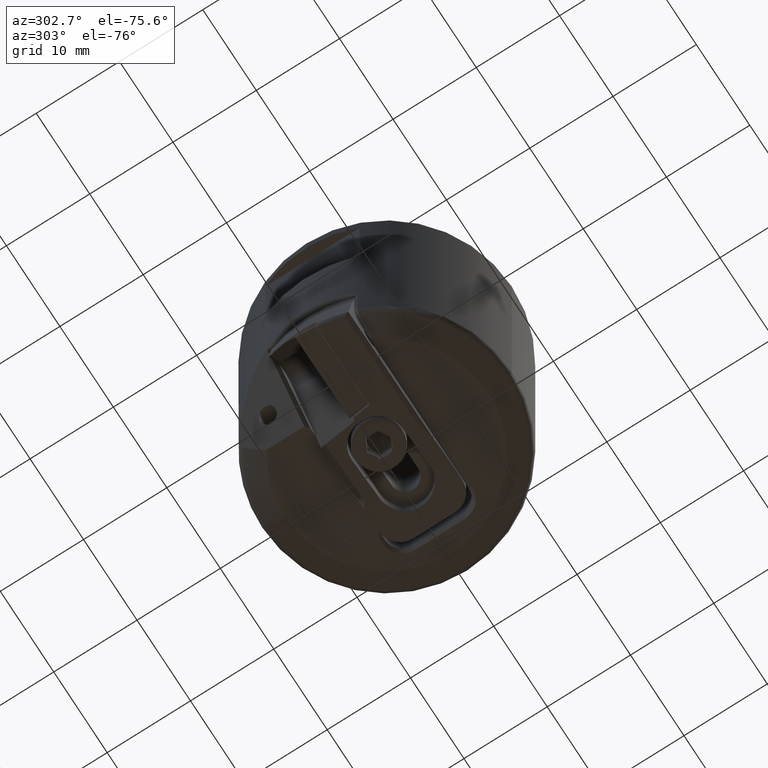
[diagram: clean part render]
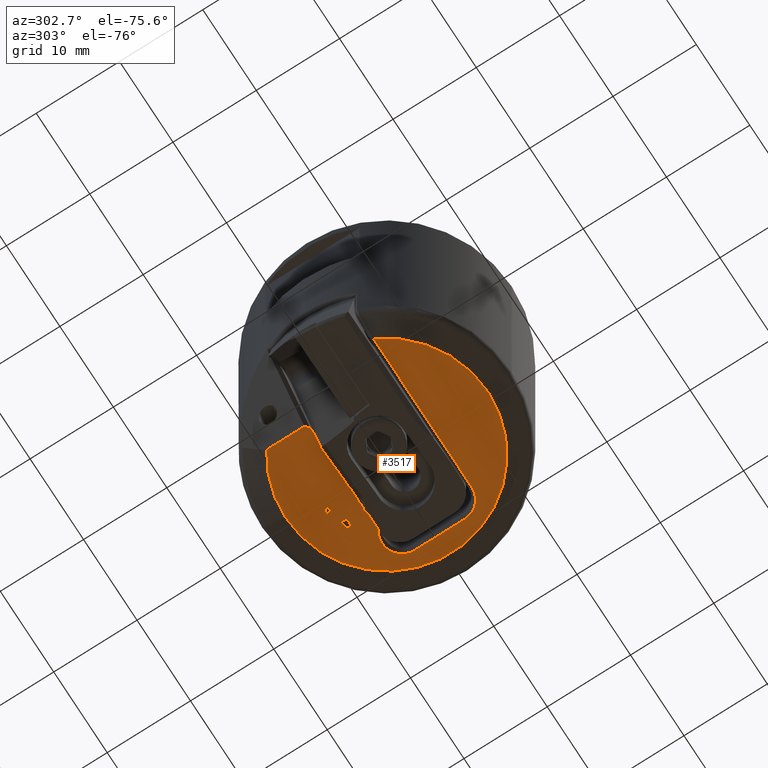
[diagram: same view with one face highlighted and labeled with its STEP entity id]
A machine part, auxiliary view. The second image highlights one B-rep face of the part: STEP entity #3517.
In plain terms, the highlighted planar face has unit normal (-0, 0, 1).
Its self-contained STEP definition (entity closure, byte-faithful):
#2015=VERTEX_POINT('NONE',#5953);
#2035=EDGE_CURVE('NONE',#2407,#5653,#5975,.F.);
#2037=VERTEX_POINT('NONE',#5977);
#2045=VERTEX_POINT('NONE',#5986);
#2049=EDGE_CURVE('NONE',#4603,#4691,#5990,.F.);
#2057=VERTEX_POINT('NONE',#5999);
#2079=EDGE_CURVE('NONE',#5471,#3443,#6022,.T.);
#2081=EDGE_CURVE('NONE',#4551,#3193,#6024,.F.);
#2113=VERTEX_POINT('NONE',#6060);
#2121=VERTEX_POINT('NONE',#6070);
#2135=EDGE_CURVE('NONE',#4603,#2413,#6085,.F.);
#2145=EDGE_CURVE('NONE',#5653,#5349,#6096,.F.);
#2167=EDGE_CURVE('NONE',#5339,#3561,#6120,.F.);
#2171=VERTEX_POINT('NONE',#6125);
#2175=VERTEX_POINT('NONE',#6129);
#2193=EDGE_CURVE('NONE',#4443,#3611,#6148,.F.);
#2207=EDGE_CURVE('NONE',#5619,#2811,#6164,.F.);
#2213=EDGE_CURVE('NONE',#3029,#2171,#6171,.F.);
#2227=EDGE_CURVE('NONE',#2175,#5871,#6186,.F.);
#2229=VERTEX_POINT('NONE',#6188);
#2245=EDGE_CURVE('NONE',#4521,#4721,#6204,.F.);
#2249=VERTEX_POINT('NONE',#6208);
#2267=EDGE_CURVE('NONE',#3561,#5513,#6227,.F.);
#2291=EDGE_CURVE('NONE',#2547,#4563,#6255,.T.);
#2303=EDGE_CURVE('NONE',#3169,#2675,#6267,.F.);
#2311=VERTEX_POINT('NONE',#6276);
#2317=EDGE_CURVE('NONE',#5027,#5467,#6283,.T.);
#2333=EDGE_CURVE('NONE',#2881,#4691,#6300,.T.);
#2365=VERTEX_POINT('NONE',#6334);
#2371=EDGE_CURVE('NONE',#2887,#4499,#6340,.F.);
#2373=EDGE_CURVE('NONE',#5489,#5767,#6342,.T.);
#2379=VERTEX_POINT('NONE',#6348);
#2399=VERTEX_POINT('NONE',#6371);
#2407=VERTEX_POINT('NONE',#6380);
#2413=VERTEX_POINT('NONE',#6386);
#2415=VERTEX_POINT('NONE',#6388);
#2447=VERTEX_POINT('NONE',#6428);
#2461=VERTEX_POINT('NONE',#6444);
#2471=VERTEX_POINT('NONE',#6454);
#2489=VERTEX_POINT('NONE',#6476);
#2535=VERTEX_POINT('NONE',#6526);
#2547=VERTEX_POINT('NONE',#6538);
#2549=EDGE_CURVE('NONE',#2489,#4529,#6540,.F.);
#2559=EDGE_CURVE('NONE',#4837,#5259,#6550,.F.);
#2563=VERTEX_POINT('NONE',#6556);
#2595=VERTEX_POINT('NONE',#6591);
#2601=EDGE_CURVE('NONE',#2675,#5471,#6597,.F.);
#2653=VERTEX_POINT('NONE',#6657);
#2661=EDGE_CURVE('NONE',#5715,#2471,#6666,.F.);
#2675=VERTEX_POINT('NONE',#6681);
#2695=EDGE_CURVE('NONE',#4419,#4797,#6702,.F.);
#2709=EDGE_CURVE('NONE',#5335,#2785,#6718,.T.);
#2765=EDGE_CURVE('NONE',#3511,#5889,#6781,.F.);
#2775=EDGE_CURVE('NONE',#4451,#2797,#6793,.T.);
#2785=VERTEX_POINT('NONE',#6805);
#2791=EDGE_CURVE('NONE',#4867,#2547,#6811,.F.);
#2793=VERTEX_POINT('NONE',#6813);
#2797=VERTEX_POINT('NONE',#6818);
#2811=VERTEX_POINT('NONE',#6833);
#2833=EDGE_CURVE('NONE',#4617,#2447,#6859,.T.);
#2849=EDGE_CURVE('NONE',#3109,#2311,#6879,.F.);
#2853=EDGE_CURVE('NONE',#4991,#5619,#6883,.F.);
#2861=EDGE_CURVE('NONE',#2045,#5363,#6891,.F.);
#2875=EDGE_CURVE('NONE',#3383,#4957,#6907,.F.);
#2881=VERTEX_POINT('NONE',#6913);
#2883=EDGE_CURVE('NONE',#2985,#2461,#6915,.F.);
#2887=VERTEX_POINT('NONE',#6919);
#2911=EDGE_CURVE('NONE',#2653,#5825,#6945,.F.);
#2969=EDGE_CURVE('NONE',#5519,#4503,#7008,.F.);
#2985=VERTEX_POINT('NONE',#7024);
#2995=EDGE_CURVE('NONE',#5515,#2399,#7035,.F.);
#3029=VERTEX_POINT('NONE',#7073);
#3031=EDGE_CURVE('NONE',#2379,#4419,#7075,.F.);
#3037=EDGE_CURVE('NONE',#4475,#5245,#7081,.T.);
#3091=EDGE_CURVE('NONE',#5349,#2535,#7146,.F.);
#3095=EDGE_CURVE('NONE',#2399,#4991,#7151,.F.);
#3109=VERTEX_POINT('NONE',#7168);
#3137=EDGE_CURVE('NONE',#3597,#4233,#7201,.F.);
#3151=EDGE_CURVE('NONE',#3425,#5489,#7215,.T.);
#3169=VERTEX_POINT('NONE',#7235);
#3173=EDGE_CURVE('NONE',#4421,#2365,#7239,.F.);
#3193=VERTEX_POINT('NONE',#7261);
#3201=EDGE_CURVE('NONE',#5871,#3333,#7269,.F.);
#3267=EDGE_CURVE('NONE',#4769,#4113,#7343,.F.);
#3333=VERTEX_POINT('NONE',#7413);
#3335=EDGE_CURVE('NONE',#2535,#5585,#7415,.F.);
#3353=EDGE_CURVE('NONE',#3751,#5715,#7436,.F.);
#3363=EDGE_CURVE('NONE',#4645,#5339,#7447,.F.);
#3367=EDGE_CURVE('NONE',#4499,#3109,#7452,.F.);
#3377=VERTEX_POINT('NONE',#7462);
#3383=VERTEX_POINT('NONE',#7469);
#3425=VERTEX_POINT('NONE',#7515);
#3443=VERTEX_POINT('NONE',#7533);
#3511=VERTEX_POINT('NONE',#7612);
#3517=ADVANCED_FACE('NONE',(#7618,#7619,#7620,#7621,#7622,#7623,#7624),#7625,.F.);
#3521=EDGE_CURVE('NONE',#4233,#5163,#7629,.F.);
#3531=EDGE_CURVE('NONE',#5215,#4769,#7640,.F.);
#3543=VERTEX_POINT('NONE',#7654);
#3561=VERTEX_POINT('NONE',#7672);
#3597=VERTEX_POINT('NONE',#7711);
#3609=EDGE_CURVE('NONE',#2311,#2595,#7727,.F.);
#3611=VERTEX_POINT('NONE',#7729);
#3637=EDGE_CURVE('NONE',#5883,#2037,#7755,.F.);
#3659=EDGE_CURVE('NONE',#3333,#3597,#7779,.F.);
#3711=EDGE_CURVE('NONE',#2037,#5515,#7842,.F.);
#3715=VERTEX_POINT('NONE',#7846);
#3725=EDGE_CURVE('NONE',#4529,#4271,#7856,.F.);
#3737=EDGE_CURVE('NONE',#2447,#3897,#7868,.T.);
#3751=VERTEX_POINT('NONE',#7885);
#3755=EDGE_CURVE('NONE',#4987,#2653,#7889,.F.);
#3777=EDGE_CURVE('NONE',#4797,#5215,#7913,.F.);
#3787=EDGE_CURVE('NONE',#2797,#4867,#7923,.T.);
#3805=VERTEX_POINT('NONE',#7942);
#3811=EDGE_CURVE('NONE',#5525,#2249,#7949,.F.);
#3835=EDGE_CURVE('NONE',#2471,#2229,#7975,.F.);
#3897=VERTEX_POINT('NONE',#8047);
#3901=EDGE_CURVE('NONE',#2249,#4403,#8051,.F.);
#3943=EDGE_CURVE('NONE',#4271,#2985,#8096,.F.);
#3957=EDGE_CURVE('NONE',#2365,#2887,#8110,.F.);
#4065=VERTEX_POINT('NONE',#8230);
#4081=EDGE_CURVE('NONE',#2171,#2793,#8251,.F.);
#4103=EDGE_CURVE('NONE',#3611,#2379,#8274,.F.);
#4113=VERTEX_POINT('NONE',#8285);
#4189=VERTEX_POINT('NONE',#8370);
#4197=VERTEX_POINT('NONE',#8378);
#4233=VERTEX_POINT('NONE',#8419);
#4267=EDGE_CURVE('NONE',#5419,#4197,#8456,.T.);
#4269=EDGE_CURVE('NONE',#3897,#4757,#8458,.F.);
#4271=VERTEX_POINT('NONE',#8460);
#4279=EDGE_CURVE('NONE',#2563,#4065,#8469,.T.);
#4281=EDGE_CURVE('NONE',#2229,#5519,#8471,.F.);
#4327=EDGE_CURVE('NONE',#2461,#4933,#8521,.F.);
#4403=VERTEX_POINT('NONE',#8604);
#4419=VERTEX_POINT('NONE',#8621);
#4421=VERTEX_POINT('NONE',#8623);
#4443=VERTEX_POINT('NONE',#8650);
#4451=VERTEX_POINT('NONE',#8658);
#4475=VERTEX_POINT('NONE',#8683);
#4499=VERTEX_POINT('NONE',#8712);
#4503=VERTEX_POINT('NONE',#8716);
#4517=EDGE_CURVE('NONE',#2415,#4189,#8733,.F.);
#4519=EDGE_CURVE('NONE',#2413,#4645,#8735,.F.);
#4521=VERTEX_POINT('NONE',#8737);
#4529=VERTEX_POINT('NONE',#8746);
#4541=EDGE_CURVE('NONE',#5851,#4551,#8760,.T.);
#4551=VERTEX_POINT('NONE',#8771);
#4563=VERTEX_POINT('NONE',#8783);
#4565=EDGE_CURVE('NONE',#4563,#2489,#8785,.F.);
#4579=EDGE_CURVE('NONE',#5585,#2415,#8800,.F.);
#4591=EDGE_CURVE('NONE',#2113,#2045,#8812,.T.);
#4603=VERTEX_POINT('NONE',#8825);
#4617=VERTEX_POINT('NONE',#8840);
#4629=EDGE_CURVE('NONE',#3543,#4837,#8852,.F.);
#4645=VERTEX_POINT('NONE',#8870);
#4667=VERTEX_POINT('NONE',#8892);
#4691=VERTEX_POINT('NONE',#8916);
#4699=EDGE_CURVE('NONE',#4113,#3169,#8926,.F.);
#4713=EDGE_CURVE('NONE',#2015,#3029,#8941,.F.);
#4721=VERTEX_POINT('NONE',#8949);
#4733=EDGE_CURVE('NONE',#5163,#5335,#8963,.F.);
#4757=VERTEX_POINT('NONE',#8990);
#4767=EDGE_CURVE('NONE',#3377,#4451,#9001,.T.);
#4769=VERTEX_POINT('NONE',#9003);
#4773=EDGE_CURVE('NONE',#2057,#5835,#9007,.F.);
#4793=EDGE_CURVE('NONE',#5767,#2057,#9028,.T.);
#4797=VERTEX_POINT('NONE',#9033);
#4823=VERTEX_POINT('NONE',#9060);
#4837=VERTEX_POINT('NONE',#9076);
#4859=EDGE_CURVE('NONE',#4065,#5027,#9100,.T.);
#4867=VERTEX_POINT('NONE',#9109);
#4877=EDGE_CURVE('NONE',#5259,#2121,#9119,.F.);
#4933=VERTEX_POINT('NONE',#9182);
#4935=EDGE_CURVE('NONE',#4933,#5419,#9184,.T.);
#4957=VERTEX_POINT('NONE',#9207);
#4973=EDGE_CURVE('NONE',#5245,#4987,#9224,.T.);
#4987=VERTEX_POINT('NONE',#9238);
#4991=VERTEX_POINT('NONE',#9242);
#4999=EDGE_CURVE('NONE',#5467,#2595,#9250,.T.);
#5027=VERTEX_POINT('NONE',#9283);
#5121=EDGE_CURVE('NONE',#4721,#3543,#9386,.F.);
#5127=EDGE_CURVE('NONE',#4503,#3511,#9393,.F.);
#5163=VERTEX_POINT('NONE',#9431);
#5191=EDGE_CURVE('NONE',#4823,#2407,#9461,.F.);
#5215=VERTEX_POINT('NONE',#9485);
#5223=EDGE_CURVE('NONE',#5307,#3751,#9493,.F.);
#5233=EDGE_CURVE('NONE',#3715,#5883,#9503,.T.);
#5239=EDGE_CURVE('NONE',#4197,#5851,#9509,.T.);
#5245=VERTEX_POINT('NONE',#9515);
#5247=EDGE_CURVE('NONE',#2811,#2113,#9517,.F.);
#5251=EDGE_CURVE('NONE',#5363,#3715,#9521,.T.);
#5259=VERTEX_POINT('NONE',#9530);
#5305=EDGE_CURVE('NONE',#4957,#5307,#9580,.F.);
#5307=VERTEX_POINT('NONE',#9582);
#5335=VERTEX_POINT('NONE',#9615);
#5339=VERTEX_POINT('NONE',#9619);
#5349=VERTEX_POINT('NONE',#9630);
#5357=EDGE_CURVE('NONE',#5889,#3383,#9638,.F.);
#5361=EDGE_CURVE('NONE',#2785,#4617,#9642,.T.);
#5363=VERTEX_POINT('NONE',#9644);
#5395=EDGE_CURVE('NONE',#3443,#4443,#9681,.T.);
#5419=VERTEX_POINT('NONE',#9706);
#5459=EDGE_CURVE('NONE',#4189,#4667,#9750,.F.);
#5467=VERTEX_POINT('',#9758);
#5469=EDGE_CURVE('NONE',#5525,#2563,#9760,.T.);
#5471=VERTEX_POINT('NONE',#9762);
#5489=VERTEX_POINT('NONE',#9783);
#5513=VERTEX_POINT('NONE',#9808);
#5515=VERTEX_POINT('NONE',#9810);
#5519=VERTEX_POINT('NONE',#9814);
#5525=VERTEX_POINT('NONE',#9820);
#5535=EDGE_CURVE('NONE',#5835,#2175,#9830,.T.);
#5565=EDGE_CURVE('NONE',#2793,#4421,#9865,.F.);
#5579=EDGE_CURVE('NONE',#5825,#3805,#9881,.F.);
#5583=EDGE_CURVE('NONE',#4667,#2015,#9885,.F.);
#5585=VERTEX_POINT('NONE',#9887);
#5619=VERTEX_POINT('NONE',#9926);
#5651=EDGE_CURVE('NONE',#5513,#4823,#9962,.F.);
#5653=VERTEX_POINT('NONE',#9964);
#5667=EDGE_CURVE('NONE',#2121,#4475,#9978,.F.);
#5675=EDGE_CURVE('NONE',#4757,#3425,#9988,.F.);
#5715=VERTEX_POINT('NONE',#10031);
#5767=VERTEX_POINT('NONE',#10093);
#5799=EDGE_CURVE('NONE',#3193,#3377,#10131,.F.);
#5801=EDGE_CURVE('NONE',#3805,#4521,#10133,.F.);
#5825=VERTEX_POINT('NONE',#10163);
#5835=VERTEX_POINT('NONE',#10173);
#5851=VERTEX_POINT('NONE',#10189);
#5871=VERTEX_POINT('NONE',#10214);
#5883=VERTEX_POINT('NONE',#10228);
#5889=VERTEX_POINT('NONE',#10235);
#5905=EDGE_CURVE('NONE',#4403,#2881,#10254,.T.);
#5953=CARTESIAN_POINT('',(3.655,6.6,-37.0));
#5975=LINE('',#10332,#10333);
#5977=CARTESIAN_POINT('',(3.22036931818182,7.48273133116884,-37.0));
#5986=CARTESIAN_POINT('',(3.26389610389611,6.98441558441559,-37.0));
#5990=LINE('',#10452,#10453);
#5999=CARTESIAN_POINT('',(3.28077922077922,8.33506493506494,-37.0));
#6022=B_SPLINE_CURVE_WITH_KNOTS('',3,(#10545,#10546,#10547,#10548,#10549,#10550,#10551,#10552,#10553,#10554,#10555,#10556,#10557,#10558,#10559,#10560,#10561,#10562,#10563),.UNSPECIFIED.,.F.,.F.,(4,1,1,1,1,1,1,1,1,1,1,1,1,1,1,1,4),(0.0,0.0727804158572602,0.142147766141081,0.209182770519268,0.274291770152588,0.337768801127301,0.400757223676069,0.462801267937535,0.525595131187398,0.587540489138166,0.647529023597575,0.706322611761746,0.763699532618562,0.821374241162988,0.879618955186682,0.9389099248299,1.0),.UNSPECIFIED.);
#6024=LINE('',#10566,#10567);
#6060=CARTESIAN_POINT('',(2.94311688311688,7.28329951298702,-37.0));
#6070=CARTESIAN_POINT('',(5.77751217532468,7.39330357142857,-37.0));
#6085=LINE('',#10675,#10676);
#6096=LINE('',#10701,#10702);
#6120=LINE('',#10752,#10753);
#6125=CARTESIAN_POINT('',(4.505,5.0,-37.0));
#6129=CARTESIAN_POINT('',(2.94311688311688,8.15198863636364,-37.0));
#6148=LINE('',#10789,#10790);
#6164=B_SPLINE_CURVE_WITH_KNOTS('',3,(#10813,#10814,#10815,#10816,#10817,#10818,#10819,#10820,#10821,#10822,#10823,#10824,#10825,#10826),.UNSPECIFIED.,.F.,.F.,(4,2,2,2,2,2,4),(-1.4744356503941,-1.36825569916316,-1.14163530923819,-0.861182361087245,-0.573354291610239,-0.308116330768604,-0.0),.UNSPECIFIED.);
#6171=LINE('',#10836,#10837);
#6186=B_SPLINE_CURVE_WITH_KNOTS('',3,(#10858,#10859,#10860,#10861,#10862,#10863,#10864,#10865,#10866,#10867,#10868,#10869),.UNSPECIFIED.,.F.,.F.,(4,2,2,2,2,4),(-1.61673109427794,-1.46601648817538,-1.17266288993949,-0.710039343898753,-0.323197745206386,-0.0),.UNSPECIFIED.);
#6188=CARTESIAN_POINT('',(1.78727272727273,8.53766233766235,-37.0));
#6204=B_SPLINE_CURVE_WITH_KNOTS('',3,(#10896,#10897,#10898,#10899,#10900,#10901),.UNSPECIFIED.,.F.,.F.,(4,2,4),(-0.509836528326806,-0.251879658745903,-0.0),.UNSPECIFIED.);
#6208=CARTESIAN_POINT('',(-1.63184190498527E-015,-12.15,-37.0));
#6227=LINE('',#10953,#10954);
#6255=B_SPLINE_CURVE_WITH_KNOTS('',3,(#11185,#11186,#11187,#11188,#11189,#11190,#11191,#11192,#11193,#11194,#11195,#11196,#11197,#11198,#11199,#11200,#11201,#11202,#11203),.UNSPECIFIED.,.F.,.F.,(4,1,1,1,1,1,1,1,1,1,1,1,1,1,1,1,4),(0.0,0.0787344013313963,0.153587303458513,0.224356039299088,0.292110216091395,0.357093412305996,0.419768093960272,0.480649357608464,0.540279918566923,0.598947770460141,0.656031681584112,0.71233438282353,0.768115240442121,0.824627320255345,0.881743242202261,0.940019145126421,1.0),.UNSPECIFIED.);
#6267=B_SPLINE_CURVE_WITH_KNOTS('',3,(#11222,#11223,#11224,#11225,#11226,#11227,#11228,#11229),.UNSPECIFIED.,.F.,.F.,(4,2,2,4),(-1.0896330722384,-0.736021289552389,-0.382257627513336,-0.0),.UNSPECIFIED.);
#6276=CARTESIAN_POINT('',(5.655,5.0,-37.0));
#6283=CIRCLE('',#11250,2.40000000000001);
#6300=LINE('',#11282,#11283);
#6334=CARTESIAN_POINT('',(4.655,5.0,-37.0));
#6340=LINE('',#11366,#11367);
#6342=B_SPLINE_CURVE_WITH_KNOTS('',3,(#11370,#11371,#11372,#11373,#11374,#11375,#11376,#11377,#11378,#11379,#11380),.UNSPECIFIED.,.F.,.F.,(4,1,1,1,1,1,1,1,4),(0.0,0.146093407258856,0.280765395695931,0.407852847267321,0.533013434944008,0.654304595216599,0.768538625770671,0.882120443088061,1.0),.UNSPECIFIED.);
#6348=CARTESIAN_POINT('',(0.943116883116885,7.29675324675326,-37.0));
#6371=CARTESIAN_POINT('',(3.41584415584416,7.28409090909092,-37.0));
#6380=CARTESIAN_POINT('',(1.655,6.6,-37.0));
#6386=CARTESIAN_POINT('',(0.505000000000001,5.0,-37.0));
#6388=CARTESIAN_POINT('',(2.655,5.0,-37.0));
#6428=CARTESIAN_POINT('',(3.61844155844156,8.1406452922078,-37.0));
#6444=CARTESIAN_POINT('',(5.90545454545455,8.48701298701299,-37.0));
#6454=CARTESIAN_POINT('',(1.93922077922078,8.53766233766235,-37.0));
#6476=CARTESIAN_POINT('',(5.28157061688312,7.84545454545455,-37.0));
#6526=CARTESIAN_POINT('',(2.505,6.2,-37.0));
#6538=CARTESIAN_POINT('',(5.26389610389611,8.47012987012987,-37.0));
#6540=B_SPLINE_CURVE_WITH_KNOTS('',3,(#12141,#12142,#12143,#12144,#12145,#12146,#12147,#12148),.UNSPECIFIED.,.F.,.F.,(4,2,2,4),(-0.809220408115279,-0.526155092124205,-0.325929512771211,-0.0),.UNSPECIFIED.);
#6550=LINE('',#12162,#12163);
#6556=CARTESIAN_POINT('',(7.5,-5.40000000000002,-37.0));
#6591=CARTESIAN_POINT('',(6.17335008385782,5.0,-37.0));
#6597=B_SPLINE_CURVE_WITH_KNOTS('',3,(#12358,#12359,#12360,#12361,#12362,#12363,#12364,#12365),.UNSPECIFIED.,.F.,.F.,(4,2,2,4),(-0.482342901286013,-0.426407059842657,-0.321732721581422,-0.0),.UNSPECIFIED.);
#6657=CARTESIAN_POINT('',(5.33142857142857,7.64285714285714,-37.0));
#6666=LINE('',#12678,#12679);
#6681=CARTESIAN_POINT('',(1.77751217532468,7.39330357142858,-37.0));
#6702=B_SPLINE_CURVE_WITH_KNOTS('',3,(#12729,#12730,#12731,#12732,#12733,#12734,#12735,#12736),.UNSPECIFIED.,.F.,.F.,(4,2,2,4),(-0.691454828847826,-0.514782624456551,-0.340984080017329,-0.0),.UNSPECIFIED.);
#6718=B_SPLINE_CURVE_WITH_KNOTS('',3,(#12857,#12858,#12859,#12860,#12861,#12862,#12863,#12864,#12865,#12866,#12867,#12868,#12869,#12870,#12871,#12872,#12873,#12874,#12875),.UNSPECIFIED.,.F.,.F.,(4,1,1,1,1,1,1,1,1,1,1,1,1,1,1,1,4),(0.0,0.0870147113786563,0.169559824573214,0.246922625650576,0.320216995058209,0.388751767922912,0.453782549621108,0.515051687049054,0.573662089122866,0.629075852700787,0.682898553341826,0.734725498972754,0.786273108851305,0.837947397462471,0.890062636797466,0.943824566586637,1.0),.UNSPECIFIED.);
#6781=LINE('',#13025,#13026);
#6793=B_SPLINE_CURVE_WITH_KNOTS('',3,(#13091,#13092,#13093,#13094,#13095,#13096,#13097,#13098,#13099,#13100,#13101),.UNSPECIFIED.,.F.,.F.,(4,1,1,1,1,1,1,1,4),(0.0,0.146093407258854,0.28076539569593,0.407852847267321,0.533013434944009,0.654304595216599,0.768538625770671,0.882120443088061,1.0),.UNSPECIFIED.);
#6805=CARTESIAN_POINT('',(4.14181818181818,8.14803165584416,-37.0));
#6811=LINE('',#13124,#13125);
#6813=CARTESIAN_POINT('',(4.505,6.2,-37.0));
#6818=CARTESIAN_POINT('',(5.07818181818182,8.14829545454545,-37.0));
#6833=CARTESIAN_POINT('',(3.64350243506494,7.65974025974027,-37.0));
#6859=B_SPLINE_CURVE_WITH_KNOTS('',3,(#13326,#13327,#13328,#13329,#13330,#13331,#13332,#13333,#13334,#13335,#13336,#13337,#13338,#13339,#13340,#13341,#13342,#13343,#13344),.UNSPECIFIED.,.F.,.F.,(4,1,1,1,1,1,1,1,1,1,1,1,1,1,1,1,4),(0.0,0.0755317067076459,0.14705781953059,0.215855346948831,0.28250510182615,0.34711971869597,0.410771537831527,0.47318139083984,0.535599522664003,0.596602587057806,0.656248002165695,0.713668832121082,0.76994899302527,0.826151060373875,0.882829192179903,0.940268016754959,1.0),.UNSPECIFIED.);
#6879=LINE('',#13372,#13373);
#6883=B_SPLINE_CURVE_WITH_KNOTS('',3,(#13379,#13380,#13381,#13382,#13383,#13384,#13385,#13386,#13387,#13388,#13389,#13390),.UNSPECIFIED.,.F.,.F.,(4,2,2,2,2,4),(-1.20343601133522,-1.04577171334899,-0.830960771812364,-0.616102141461835,-0.347937706274249,-0.0),.UNSPECIFIED.);
#6891=LINE('',#13403,#13404);
#6907=LINE('',#13462,#13463);
#6913=CARTESIAN_POINT('',(-7.0,9.93088616388286,-37.0));
#6915=B_SPLINE_CURVE_WITH_KNOTS('',3,(#13472,#13473,#13474,#13475,#13476,#13477,#13478,#13479,#13480,#13481,#13482,#13483),.UNSPECIFIED.,.F.,.F.,(4,2,2,2,2,4),(-1.1047549065353,-1.03564771432829,-0.867715930774213,-0.566987660720163,-0.331091412910333,-0.0),.UNSPECIFIED.);
#6919=CARTESIAN_POINT('',(5.505,5.0,-37.0));
#6945=B_SPLINE_CURVE_WITH_KNOTS('',3,(#13570,#13571,#13572,#13573,#13574,#13575,#13576,#13577,#13578,#13579,#13580,#13581),.UNSPECIFIED.,.F.,.F.,(4,2,2,2,2,4),(-1.01044314112794,-0.907522610956922,-0.668733238020847,-0.531797349515407,-0.383114061021551,-0.0),.UNSPECIFIED.);
#7008=LINE('',#13757,#13758);
#7024=CARTESIAN_POINT('',(6.27688311688312,8.15014204545455,-37.0));
#7035=B_SPLINE_CURVE_WITH_KNOTS('',3,(#13795,#13796,#13797,#13798,#13799,#13800,#13801,#13802),.UNSPECIFIED.,.F.,.F.,(4,2,2,4),(-1.09690985465669,-0.606817561261977,-0.364641407943929,-0.0),.UNSPECIFIED.);
#7073=CARTESIAN_POINT('',(3.655,5.0,-37.0));
#7075=B_SPLINE_CURVE_WITH_KNOTS('',3,(#13861,#13862,#13863,#13864,#13865,#13866,#13867,#13868,#13869,#13870,#13871,#13872),.UNSPECIFIED.,.F.,.F.,(4,2,2,2,2,4),(-1.10603617306866,-0.905245334086242,-0.714200915909634,-0.552576090951779,-0.314173848988293,-0.0),.UNSPECIFIED.);
#7081=B_SPLINE_CURVE_WITH_KNOTS('',3,(#13881,#13882,#13883,#13884,#13885,#13886,#13887,#13888,#13889,#13890,#13891,#13892,#13893,#13894,#13895,#13896,#13897,#13898,#13899),.UNSPECIFIED.,.F.,.F.,(4,1,1,1,1,1,1,1,1,1,1,1,1,1,1,1,4),(0.0,0.0727804158572613,0.142147766141081,0.20918277051927,0.274291770152589,0.337768801127301,0.40075722367607,0.462801267937536,0.525595131187399,0.587540489138166,0.647529023597575,0.706322611761746,0.763699532618561,0.821374241162989,0.879618955186682,0.9389099248299,1.0),.UNSPECIFIED.);
#7146=LINE('',#14013,#14014);
#7151=B_SPLINE_CURVE_WITH_KNOTS('',3,(#14020,#14021,#14022,#14023,#14024,#14025,#14026,#14027,#14028,#14029,#14030,#14031),.UNSPECIFIED.,.F.,.F.,(4,2,2,2,2,4),(-0.58929807835445,-0.517037117514478,-0.462443278243041,-0.413374868602281,-0.312069132822516,-0.0),.UNSPECIFIED.);
#7168=CARTESIAN_POINT('',(5.655,6.6,-37.0));
#7201=B_SPLINE_CURVE_WITH_KNOTS('',3,(#14117,#14118,#14119,#14120,#14121,#14122,#14123,#14124,#14125,#14126,#14127,#14128),.UNSPECIFIED.,.F.,.F.,(4,2,2,2,2,4),(-1.0619707570686,-0.96095054566255,-0.802350498644141,-0.567351700239663,-0.312755657130486,-0.0),.UNSPECIFIED.);
#7215=B_SPLINE_CURVE_WITH_KNOTS('',3,(#14148,#14149,#14150,#14151,#14152,#14153,#14154,#14155,#14156,#14157,#14158,#14159,#14160,#14161,#14162,#14163,#14164,#14165,#14166),.UNSPECIFIED.,.F.,.F.,(4,1,1,1,1,1,1,1,1,1,1,1,1,1,1,1,4),(0.0,0.0690292090650794,0.134699324053628,0.198855960846468,0.260636479273357,0.320384851756808,0.380768464004617,0.440335536221027,0.500788766425867,0.561122602379466,0.621431534779787,0.680857213271693,0.740520040393358,0.801802517590906,0.865366362012225,0.930940330791385,1.0),.UNSPECIFIED.);
#7235=CARTESIAN_POINT('',(2.26,7.65974025974027,-37.0));
#7239=LINE('',#14196,#14197);
#7261=CARTESIAN_POINT('',(5.48337662337663,8.21688311688312,-37.0));
#7269=B_SPLINE_CURVE_WITH_KNOTS('',3,(#14256,#14257,#14258,#14259,#14260,#14261,#14262,#14263),.UNSPECIFIED.,.F.,.F.,(4,2,2,4),(-0.809220408114139,-0.526155092123331,-0.325929512770767,-0.0),.UNSPECIFIED.);
#7343=LINE('',#14467,#14468);
#7413=CARTESIAN_POINT('',(3.54668831168831,7.99186282467533,-37.0));
#7415=LINE('',#14608,#14609);
#7436=LINE('',#14638,#14639);
#7447=LINE('',#14653,#14654);
#7452=LINE('',#14660,#14661);
#7462=CARTESIAN_POINT('',(5.48522321428572,8.19657061688312,-37.0));
#7469=CARTESIAN_POINT('',(1.93922077922078,7.79480519480521,-37.0));
#7515=CARTESIAN_POINT('',(3.48522321428572,8.19657061688312,-37.0));
#7533=CARTESIAN_POINT('',(1.07818181818182,7.30176542207793,-37.0));
#7612=CARTESIAN_POINT('',(1.78727272727273,7.94675324675326,-37.0));
#7618=FACE_OUTER_BOUND('',#14975,.T.);
#7619=FACE_BOUND('',#14976,.T.);
#7620=FACE_BOUND('',#14977,.T.);
#7621=FACE_BOUND('',#14978,.T.);
#7622=FACE_BOUND('',#14979,.T.);
#7623=FACE_BOUND('',#14980,.T.);
#7624=FACE_BOUND('',#14981,.T.);
#7625=PLANE('',#14982);
#7629=B_SPLINE_CURVE_WITH_KNOTS('',3,(#14987,#14988,#14989,#14990,#14991,#14992,#14993,#14994,#14995,#14996,#14997,#14998),.UNSPECIFIED.,.F.,.F.,(4,2,2,2,2,4),(-1.10475490654936,-1.03564771433855,-0.867715930777662,-0.566987660721507,-0.331091412910404,-0.0),.UNSPECIFIED.);
#7640=LINE('',#15015,#15016);
#7654=CARTESIAN_POINT('',(6.10805194805195,6.96753246753247,-37.0));
#7672=CARTESIAN_POINT('',(0.655000000000001,5.0,-37.0));
#7711=CARTESIAN_POINT('',(3.86825892857143,7.7948051948052,-37.0));
#7727=LINE('',#15276,#15277);
#7729=CARTESIAN_POINT('',(1.33142857142857,7.64285714285715,-37.0));
#7755=B_SPLINE_CURVE_WITH_KNOTS('',3,(#15346,#15347,#15348,#15349,#15350,#15351,#15352,#15353,#15354,#15355,#15356,#15357),.UNSPECIFIED.,.F.,.F.,(4,2,2,2,2,4),(-0.261166389695055,-0.211534947963125,-0.175631123259114,-0.148228636680453,-0.0912971194689873,-0.0),.UNSPECIFIED.);
#7779=B_SPLINE_CURVE_WITH_KNOTS('',3,(#15389,#15390,#15391,#15392,#15393,#15394,#15395,#15396,#15397,#15398),.UNSPECIFIED.,.F.,.F.,(4,2,2,2,4),(-7.17133314154812,-2.02509841053453,-0.909462132203981,-0.327580496792934,-0.0),.UNSPECIFIED.);
#7842=B_SPLINE_CURVE_WITH_KNOTS('',3,(#15594,#15595,#15596,#15597,#15598,#15599),.UNSPECIFIED.,.F.,.F.,(4,2,4),(-0.528209040262762,-0.341191829209163,-0.0),.UNSPECIFIED.);
#7846=CARTESIAN_POINT('',(3.13964691558442,7.17435064935066,-37.0));
#7856=B_SPLINE_CURVE_WITH_KNOTS('',3,(#15622,#15623,#15624,#15625,#15626,#15627,#15628,#15629,#15630,#15631),.UNSPECIFIED.,.F.,.F.,(4,2,2,2,4),(-7.1713331419207,-2.02509841061377,-0.909462132213788,-0.327580496792755,-0.0),.UNSPECIFIED.);
#7868=B_SPLINE_CURVE_WITH_KNOTS('',3,(#15646,#15647,#15648,#15649,#15650,#15651,#15652),.UNSPECIFIED.,.F.,.F.,(4,1,1,1,4),(0.0,0.208161422839124,0.443742890776892,0.70798628514352,1.0),.UNSPECIFIED.);
#7885=CARTESIAN_POINT('',(2.26,8.08181818181819,-37.0));
#7889=LINE('',#15844,#15845);
#7913=B_SPLINE_CURVE_WITH_KNOTS('',3,(#15957,#15958,#15959,#15960,#15961,#15962),.UNSPECIFIED.,.F.,.F.,(4,2,4),(-0.509836528326658,-0.251879658745901,-0.0),.UNSPECIFIED.);
#7923=B_SPLINE_CURVE_WITH_KNOTS('',3,(#15974,#15975,#15976,#15977,#15978,#15979,#15980,#15981,#15982,#15983,#15984,#15985,#15986,#15987,#15988),.UNSPECIFIED.,.F.,.F.,(4,1,1,1,1,1,1,1,1,1,1,1,4),(0.0,0.115765078426595,0.225203205486027,0.334943061145549,0.448158058099923,0.507119511420224,0.567285864598362,0.630622450620807,0.696557608007488,0.766265703213675,0.840094230323641,0.917481099872998,1.0),.UNSPECIFIED.);
#7942=CARTESIAN_POINT('',(5.30742288961039,6.96753246753247,-37.0));
#7949=CIRCLE('',#16042,12.15);
#7975=LINE('',#16112,#16113);
#8047=CARTESIAN_POINT('',(3.63637987012987,8.23376623376624,-37.0));
#8051=CIRCLE('',#16223,12.15);
#8096=B_SPLINE_CURVE_WITH_KNOTS('',3,(#16315,#16316,#16317,#16318,#16319,#16320,#16321,#16322,#16323,#16324,#16325,#16326),.UNSPECIFIED.,.F.,.F.,(4,2,2,2,2,4),(-1.061970757005,-0.960950545629167,-0.802350498640629,-0.567351700240134,-0.312755657130539,-0.0),.UNSPECIFIED.);
#8110=LINE('',#16349,#16350);
#8230=CARTESIAN_POINT('',(9.90000000000001,-3.0,-37.0));
#8251=LINE('',#16813,#16814);
#8274=B_SPLINE_CURVE_WITH_KNOTS('',3,(#16869,#16870,#16871,#16872,#16873,#16874,#16875,#16876,#16877,#16878,#16879,#16880),.UNSPECIFIED.,.F.,.F.,(4,2,2,2,2,4),(-1.01044314112563,-0.907522610955269,-0.668733238019962,-0.531797349514803,-0.383114061021118,-0.0),.UNSPECIFIED.);
#8285=CARTESIAN_POINT('',(2.26,6.96753246753248,-37.0));
#8370=CARTESIAN_POINT('',(3.505,5.0,-37.0));
#8378=CARTESIAN_POINT('',(5.86984172077922,7.92987012987013,-37.0));
#8419=CARTESIAN_POINT('',(4.27688311688312,8.15014204545455,-37.0));
#8456=B_SPLINE_CURVE_WITH_KNOTS('',3,(#17352,#17353,#17354,#17355,#17356,#17357,#17358,#17359,#17360,#17361,#17362,#17363,#17364,#17365,#17366,#17367,#17368,#17369,#17370),.UNSPECIFIED.,.F.,.F.,(4,1,1,1,1,1,1,1,1,1,1,1,1,1,1,1,4),(0.0,0.0565024102745068,0.111056446457973,0.16550868680804,0.220329037718226,0.275740788587613,0.333285085904462,0.392974818760024,0.455509216742349,0.519440182545513,0.583587741738659,0.648055240867621,0.714350738948263,0.781322756925756,0.851332510679599,0.923795616745915,1.0),.UNSPECIFIED.);
#8458=LINE('',#17373,#17374);
#8460=CARTESIAN_POINT('',(5.86825892857143,7.7948051948052,-37.0));
#8469=CIRCLE('',#17401,2.40000000000001);
#8471=LINE('',#17404,#17405);
#8521=LINE('',#17495,#17496);
#8604=CARTESIAN_POINT('',(0.0,12.15,-37.0));
#8621=CARTESIAN_POINT('',(1.30742288961039,6.96753246753248,-37.0));
#8623=CARTESIAN_POINT('',(4.655,6.2,-37.0));
#8650=CARTESIAN_POINT('',(1.34831168831169,7.50779220779222,-37.0));
#8658=CARTESIAN_POINT('',(5.27392045454546,7.98051948051948,-37.0));
#8683=CARTESIAN_POINT('',(5.3047849025974,7.1025974025974,-37.0));
#8712=CARTESIAN_POINT('',(5.505,6.6,-37.0));
#8716=CARTESIAN_POINT('',(0.943116883116884,7.94675324675326,-37.0));
#8733=LINE('',#18301,#18302);
#8735=LINE('',#18305,#18306);
#8737=CARTESIAN_POINT('',(5.85559659090909,7.27327516233766,-37.0));
#8746=CARTESIAN_POINT('',(5.54668831168831,7.99186282467532,-37.0));
#8760=B_SPLINE_CURVE_WITH_KNOTS('',3,(#18340,#18341,#18342,#18343,#18344,#18345,#18346),.UNSPECIFIED.,.F.,.F.,(4,1,1,1,4),(0.0,0.208161422839124,0.443742890776891,0.707986285143519,1.0),.UNSPECIFIED.);
#8771=CARTESIAN_POINT('',(5.63637987012987,8.23376623376623,-37.0));
#8783=CARTESIAN_POINT('',(4.94311688311689,8.15198863636364,-37.0));
#8785=B_SPLINE_CURVE_WITH_KNOTS('',3,(#18382,#18383,#18384,#18385,#18386,#18387,#18388,#18389,#18390,#18391,#18392,#18393),.UNSPECIFIED.,.F.,.F.,(4,2,2,2,2,4),(-1.61673109424632,-1.46601648815192,-1.17266288993051,-0.710039343898985,-0.323197745206516,-0.0),.UNSPECIFIED.);
#8800=LINE('',#18415,#18416);
#8812=B_SPLINE_CURVE_WITH_KNOTS('',3,(#18434,#18435,#18436,#18437,#18438,#18439,#18440,#18441,#18442,#18443,#18444,#18445,#18446,#18447,#18448,#18449,#18450,#18451,#18452),.UNSPECIFIED.,.F.,.F.,(4,1,1,1,1,1,1,1,1,1,1,1,1,1,1,1,4),(0.0,0.0603516244965093,0.118964843697893,0.176006732361892,0.231835826210814,0.287717738514171,0.343515117291125,0.400443108441718,0.458867272578393,0.518498453012684,0.579239886983842,0.642030404390472,0.706903065945948,0.775118552310663,0.846147696459138,0.921034529313186,1.0),.UNSPECIFIED.);
#8825=CARTESIAN_POINT('',(-6.47783708426709,5.0,-37.0));
#8840=CARTESIAN_POINT('',(3.86984172077922,7.92987012987014,-37.0));
#8852=LINE('',#18505,#18506);
#8870=CARTESIAN_POINT('',(0.505000000000001,6.2,-37.0));
#8892=CARTESIAN_POINT('',(3.505,6.6,-37.0));
#8916=CARTESIAN_POINT('',(-7.0,5.4,-37.0));
#8926=LINE('',#18724,#18725);
#8941=LINE('',#18828,#18829);
#8949=CARTESIAN_POINT('',(6.10805194805195,7.47402597402597,-37.0));
#8963=LINE('',#18855,#18856);
#8990=CARTESIAN_POINT('',(3.48337662337663,8.21688311688312,-37.0));
#9001=B_SPLINE_CURVE_WITH_KNOTS('',3,(#18907,#18908,#18909,#18910,#18911,#18912,#18913,#18914,#18915,#18916,#18917,#18918,#18919,#18920,#18921,#18922,#18923,#18924,#18925),.UNSPECIFIED.,.F.,.F.,(4,1,1,1,1,1,1,1,1,1,1,1,1,1,1,1,4),(0.0,0.0690292090650794,0.134699324053628,0.198855960846468,0.260636479273357,0.320384851756808,0.380768464004617,0.440335536221027,0.500788766425866,0.561122602379465,0.621431534779786,0.680857213271693,0.740520040393358,0.801802517590904,0.865366362012225,0.930940330791385,1.0),.UNSPECIFIED.);
#9003=CARTESIAN_POINT('',(2.10805194805195,6.96753246753248,-37.0));
#9007=LINE('',#18934,#18935);
#9028=B_SPLINE_CURVE_WITH_KNOTS('',3,(#18971,#18972,#18973,#18974,#18975,#18976,#18977,#18978,#18979,#18980,#18981,#18982,#18983,#18984,#18985),.UNSPECIFIED.,.F.,.F.,(4,1,1,1,1,1,1,1,1,1,1,1,4),(0.0,0.115765078426595,0.225203205486027,0.334943061145549,0.448158058099923,0.507119511420225,0.567285864598362,0.630622450620806,0.696557608007488,0.766265703213675,0.840094230323641,0.917481099872998,1.0),.UNSPECIFIED.);
#9033=CARTESIAN_POINT('',(1.85559659090909,7.27327516233767,-37.0));
#9060=CARTESIAN_POINT('',(1.505,6.6,-37.0));
#9076=CARTESIAN_POINT('',(6.26,6.96753246753247,-37.0));
#9100=LINE('',#19089,#19090);
#9109=CARTESIAN_POINT('',(5.28077922077922,8.33506493506494,-37.0));
#9119=B_SPLINE_CURVE_WITH_KNOTS('',3,(#19254,#19255,#19256,#19257,#19258,#19259,#19260,#19261),.UNSPECIFIED.,.F.,.F.,(4,2,2,4),(-1.09580472203534,-0.671860203470513,-0.336966856009922,-0.0),.UNSPECIFIED.);
#9182=CARTESIAN_POINT('',(5.88857142857143,8.35194805194805,-37.0));
#9184=B_SPLINE_CURVE_WITH_KNOTS('',3,(#19803,#19804,#19805,#19806,#19807,#19808,#19809,#19810,#19811,#19812,#19813,#19814,#19815,#19816,#19817,#19818,#19819,#19820,#19821),.UNSPECIFIED.,.F.,.F.,(4,1,1,1,1,1,1,1,1,1,1,1,1,1,1,1,4),(0.0,0.0870147113786563,0.169559824573214,0.246922625650576,0.320216995058209,0.388751767922912,0.453782549621108,0.515051687049054,0.573662089122866,0.629075852700787,0.682898553341826,0.734725498972754,0.786273108851305,0.837947397462471,0.890062636797466,0.943824566586637,1.0),.UNSPECIFIED.);
#9207=CARTESIAN_POINT('',(1.93922077922078,7.94675324675326,-37.0));
#9224=B_SPLINE_CURVE_WITH_KNOTS('',3,(#19895,#19896,#19897,#19898,#19899,#19900,#19901,#19902,#19903,#19904,#19905,#19906,#19907,#19908,#19909,#19910,#19911,#19912,#19913),.UNSPECIFIED.,.F.,.F.,(4,1,1,1,1,1,1,1,1,1,1,1,1,1,1,1,4),(0.0,0.058049266090533,0.113314832083688,0.167562272445947,0.221142448095172,0.275517101325321,0.329522452831386,0.385758076532147,0.443893466135218,0.503677496538347,0.56464532775617,0.628004655719016,0.695018770752933,0.764665302827801,0.838770057593729,0.917140458072856,1.0),.UNSPECIFIED.);
#9238=CARTESIAN_POINT('',(5.34831168831169,7.50779220779221,-37.0));
#9242=CARTESIAN_POINT('',(3.83581168831169,6.96753246753247,-37.0));
#9250=CIRCLE('',#19949,2.40000000000001);
#9283=CARTESIAN_POINT('',(9.90000000000001,3.0,-37.0));
#9386=LINE('',#20369,#20370);
#9393=LINE('',#20378,#20379);
#9431=CARTESIAN_POINT('',(3.90545454545455,8.48701298701299,-37.0));
#9461=LINE('',#20642,#20643);
#9485=CARTESIAN_POINT('',(2.10805194805195,7.47402597402599,-37.0));
#9493=LINE('',#20687,#20688);
#9503=B_SPLINE_CURVE_WITH_KNOTS('',3,(#20712,#20713,#20714,#20715,#20716,#20717,#20718,#20719,#20720,#20721,#20722),.UNSPECIFIED.,.F.,.F.,(4,1,1,1,1,1,1,1,4),(0.0,0.13686901376686,0.266130933767955,0.3902278937046,0.511995458717974,0.632291167390401,0.753606699835556,0.875701964652088,1.0),.UNSPECIFIED.);
#9509=B_SPLINE_CURVE_WITH_KNOTS('',3,(#20730,#20731,#20732,#20733,#20734,#20735,#20736,#20737,#20738,#20739,#20740,#20741,#20742,#20743,#20744,#20745,#20746,#20747,#20748),.UNSPECIFIED.,.F.,.F.,(4,1,1,1,1,1,1,1,1,1,1,1,1,1,1,1,4),(0.0,0.0755317067076458,0.147057819530589,0.215855346948832,0.28250510182615,0.34711971869597,0.410771537831527,0.47318139083984,0.535599522664003,0.596602587057806,0.656248002165696,0.713668832121082,0.76994899302527,0.826151060373875,0.882829192179903,0.940268016754959,1.0),.UNSPECIFIED.);
#9515=CARTESIAN_POINT('',(5.07818181818182,7.30176542207792,-37.0));
#9517=B_SPLINE_CURVE_WITH_KNOTS('',3,(#20759,#20760,#20761,#20762,#20763,#20764,#20765,#20766,#20767,#20768,#20769,#20770),.UNSPECIFIED.,.F.,.F.,(4,2,2,2,2,4),(-0.945224317901939,-0.81537432274946,-0.674739551640321,-0.569514621262711,-0.456196462806839,-0.0),.UNSPECIFIED.);
#9521=B_SPLINE_CURVE_WITH_KNOTS('',3,(#20776,#20777,#20778,#20779,#20780,#20781,#20782),.UNSPECIFIED.,.F.,.F.,(4,1,1,1,4),(0.0,0.307552806371664,0.575905572426217,0.804303358164106,1.0),.UNSPECIFIED.);
#9530=CARTESIAN_POINT('',(6.26,7.65974025974026,-37.0));
#9580=LINE('',#21073,#21074);
#9582=CARTESIAN_POINT('',(2.26,7.94675324675326,-37.0));
#9615=CARTESIAN_POINT('',(3.88857142857143,8.35194805194806,-37.0));
#9619=CARTESIAN_POINT('',(0.655000000000001,6.2,-37.0));
#9630=CARTESIAN_POINT('',(2.505,5.0,-37.0));
#9638=LINE('',#21154,#21155);
#9642=B_SPLINE_CURVE_WITH_KNOTS('',3,(#21162,#21163,#21164,#21165,#21166,#21167,#21168,#21169,#21170,#21171,#21172,#21173,#21174,#21175,#21176,#21177,#21178,#21179,#21180),.UNSPECIFIED.,.F.,.F.,(4,1,1,1,1,1,1,1,1,1,1,1,1,1,1,1,4),(0.0,0.0565024102745068,0.111056446457973,0.16550868680804,0.220329037718226,0.275740788587613,0.333285085904462,0.392974818760021,0.455509216742349,0.519440182545513,0.583587741738659,0.648055240867621,0.714350738948263,0.781322756925756,0.851332510679599,0.923795616745916,1.0),.UNSPECIFIED.);
#9644=CARTESIAN_POINT('',(3.28077922077922,7.11948051948053,-37.0));
#9681=B_SPLINE_CURVE_WITH_KNOTS('',3,(#21227,#21228,#21229,#21230,#21231,#21232,#21233,#21234,#21235,#21236,#21237,#21238,#21239,#21240,#21241,#21242,#21243,#21244,#21245),.UNSPECIFIED.,.F.,.F.,(4,1,1,1,1,1,1,1,1,1,1,1,1,1,1,1,4),(0.0,0.0580492660905331,0.113314832083688,0.167562272445947,0.221142448095171,0.275517101325321,0.329522452831386,0.385758076532147,0.443893466135219,0.503677496538347,0.564645327756171,0.628004655719016,0.695018770752934,0.764665302827801,0.838770057593729,0.917140458072856,1.0),.UNSPECIFIED.);
#9706=CARTESIAN_POINT('',(6.14181818181818,8.14803165584416,-37.0));
#9750=LINE('',#21678,#21679);
#9758=CARTESIAN_POINT('',(7.5,5.40000000000001,-37.0));
#9760=LINE('',#21691,#21692);
#9762=CARTESIAN_POINT('',(1.3047849025974,7.10259740259741,-37.0));
#9783=CARTESIAN_POINT('',(3.27392045454546,7.98051948051949,-37.0));
#9808=CARTESIAN_POINT('',(1.505,5.0,-37.0));
#9810=CARTESIAN_POINT('',(3.58282873376624,7.54287743506494,-37.0));
#9814=CARTESIAN_POINT('',(0.943116883116884,8.07416801948053,-37.0));
#9820=CARTESIAN_POINT('',(-10.884047960203,-5.40000000000003,-37.0));
#9830=B_SPLINE_CURVE_WITH_KNOTS('',3,(#21842,#21843,#21844,#21845,#21846,#21847,#21848,#21849,#21850,#21851,#21852,#21853,#21854,#21855,#21856,#21857,#21858,#21859,#21860),.UNSPECIFIED.,.F.,.F.,(4,1,1,1,1,1,1,1,1,1,1,1,1,1,1,1,4),(0.0,0.0787344013313963,0.153587303458513,0.224356039299088,0.292110216091395,0.357093412305997,0.419768093960272,0.480649357608465,0.540279918566922,0.598947770460141,0.656031681584112,0.71233438282353,0.768115240442121,0.824627320255345,0.881743242202261,0.940019145126421,1.0),.UNSPECIFIED.);
#9865=LINE('',#21910,#21911);
#9881=B_SPLINE_CURVE_WITH_KNOTS('',3,(#21931,#21932,#21933,#21934,#21935,#21936,#21937,#21938,#21939,#21940,#21941,#21942),.UNSPECIFIED.,.F.,.F.,(4,2,2,2,2,4),(-1.10603617307519,-0.905245334091138,-0.71420091591177,-0.552576090952552,-0.314173848988266,-0.0),.UNSPECIFIED.);
#9885=LINE('',#21949,#21950);
#9887=CARTESIAN_POINT('',(2.655,6.2,-37.0));
#9926=CARTESIAN_POINT('',(4.27688311688312,7.29543425324676,-37.0));
#9962=LINE('',#22055,#22056);
#9964=CARTESIAN_POINT('',(1.655,5.0,-37.0));
#9978=B_SPLINE_CURVE_WITH_KNOTS('',3,(#22077,#22078,#22079,#22080,#22081,#22082,#22083,#22084),.UNSPECIFIED.,.F.,.F.,(4,2,2,4),(-0.482342901278169,-0.426407059835206,-0.321732721575029,-0.0),.UNSPECIFIED.);
#9988=LINE('',#22194,#22195);
#10031=CARTESIAN_POINT('',(1.93922077922078,8.08181818181819,-37.0));
#10093=CARTESIAN_POINT('',(3.07818181818182,8.14829545454546,-37.0));
#10131=LINE('',#22515,#22516);
#10133=B_SPLINE_CURVE_WITH_KNOTS('',3,(#22519,#22520,#22521,#22522,#22523,#22524,#22525,#22526),.UNSPECIFIED.,.F.,.F.,(4,2,2,4),(-0.69145482886989,-0.514782624467154,-0.340984080018259,-0.0),.UNSPECIFIED.);
#10163=CARTESIAN_POINT('',(4.94311688311689,7.29675324675325,-37.0));
#10173=CARTESIAN_POINT('',(3.26389610389611,8.47012987012988,-37.0));
#10189=CARTESIAN_POINT('',(5.61844155844156,8.1406452922078,-37.0));
#10214=CARTESIAN_POINT('',(3.28157061688312,7.84545454545455,-37.0));
#10228=CARTESIAN_POINT('',(3.07818181818182,7.29991883116884,-37.0));
#10235=CARTESIAN_POINT('',(1.78727272727273,7.79480519480521,-37.0));
#10254=CIRCLE('',#22805,12.15);
#10332=CARTESIAN_POINT('',(1.655,2.3,-37.0));
#10333=VECTOR('',#22875,1.0);
#10452=CARTESIAN_POINT('',(-6.50431353053816,5.02028213453949,-37.0));
#10453=VECTOR('',#22883,1.0);
#10545=CARTESIAN_POINT('',(1.3047849025974,7.10259740259741,-37.0));
#10546=CARTESIAN_POINT('',(1.29659651268689,7.10269161044375,-37.0));
#10547=CARTESIAN_POINT('',(1.28060373055777,7.10287560822327,-37.0));
#10548=CARTESIAN_POINT('',(1.2572479828156,7.10600239247557,-37.0));
#10549=CARTESIAN_POINT('',(1.23503304941287,7.1104615987008,-37.0));
#10550=CARTESIAN_POINT('',(1.21379837866142,7.11634907248588,-37.0));
#10551=CARTESIAN_POINT('',(1.19389275475405,7.12469683129913,-37.0));
#10552=CARTESIAN_POINT('',(1.17517807156994,7.13469885440442,-37.0));
#10553=CARTESIAN_POINT('',(1.15756956779853,7.14641480484979,-37.0));
#10554=CARTESIAN_POINT('',(1.1413258312852,7.1597844837128,-37.0));
#10555=CARTESIAN_POINT('',(1.12667195063061,7.17452819797616,-37.0));
#10556=CARTESIAN_POINT('',(1.11350727986461,7.1900660040266,-37.0));
#10557=CARTESIAN_POINT('',(1.10285240608415,7.20680210521163,-37.0));
#10558=CARTESIAN_POINT('',(1.09357712260831,7.22404864405239,-37.0));
#10559=CARTESIAN_POINT('',(1.08685496478931,7.24238841447118,-37.0));
#10560=CARTESIAN_POINT('',(1.08173094239367,7.26143522866451,-37.0));
#10561=CARTESIAN_POINT('',(1.0788417852843,7.28136530624206,-37.0));
#10562=CARTESIAN_POINT('',(1.07840398818829,7.29489796785157,-37.0));
#10563=CARTESIAN_POINT('',(1.07818181818182,7.30176542207793,-37.0));
#10566=CARTESIAN_POINT('',(-3.59864137961915,7.21472940620774,-37.0));
#10567=VECTOR('',#22913,1.0);
#10675=CARTESIAN_POINT('',(-1.325,5.0,-37.0));
#10676=VECTOR('',#22987,1.0);
#10701=CARTESIAN_POINT('',(-1.325,5.0,-37.0));
#10702=VECTOR('',#23006,1.0);
#10752=CARTESIAN_POINT('',(0.654999999999999,2.3,-37.0));
#10753=VECTOR('',#23033,1.0);
#10789=CARTESIAN_POINT('',(1.7064965034965,4.64231368631369,-37.0));
#10790=VECTOR('',#23056,1.0);
#10813=CARTESIAN_POINT('',(3.55350724597673,7.66067081923765,-37.0));
#10814=CARTESIAN_POINT('',(3.68786202962214,7.65928157697696,-37.0));
#10815=CARTESIAN_POINT('',(3.7277596231476,7.65886903176255,-36.999999999999));
#10816=CARTESIAN_POINT('',(3.87860172859641,7.64822087647854,-36.999999999999));
#10817=CARTESIAN_POINT('',(3.9543384708182,7.63193336048018,-36.9999999999993));
#10818=CARTESIAN_POINT('',(4.06548602745036,7.59761502978236,-36.9999999999993));
#10819=CARTESIAN_POINT('',(4.10746568163032,7.57374925949818,-36.9999999999999));
#10820=CARTESIAN_POINT('',(4.16731120633406,7.53056270908867,-36.9999999999999));
#10821=CARTESIAN_POINT('',(4.19548132790411,7.5034696471403,-36.9999999999998));
#10822=CARTESIAN_POINT('',(4.23356551867316,7.45453435142826,-36.9999999999998));
#10823=CARTESIAN_POINT('',(4.25360224070639,7.42303016366249,-36.9999999999999));
#10824=CARTESIAN_POINT('',(4.2808231162827,7.32287645956523,-36.9999999999999));
#10825=CARTESIAN_POINT('',(4.27740674806345,7.30812890200889,-37.0));
#10826=CARTESIAN_POINT('',(4.27317393460251,7.20551071924809,-37.0));
#10836=CARTESIAN_POINT('',(-1.325,5.0,-37.0));
#10837=VECTOR('',#23099,1.0);
#10858=CARTESIAN_POINT('',(3.37155541646934,7.84380050693376,-37.0));
#10859=CARTESIAN_POINT('',(3.25913539622141,7.84586693420651,-37.0));
#10860=CARTESIAN_POINT('',(3.23569296145044,7.84629783687352,-37.0000000000008));
#10861=CARTESIAN_POINT('',(3.14315874675149,7.86409663554974,-37.0000000000008));
#10862=CARTESIAN_POINT('',(3.10329617688704,7.88720889525076,-37.0000000000011));
#10863=CARTESIAN_POINT('',(3.0484821383532,7.9236435882807,-37.0000000000011));
#10864=CARTESIAN_POINT('',(3.02111132959607,7.95031272632323,-37.0000000000009));
#10865=CARTESIAN_POINT('',(2.98446850068247,7.99881976476262,-37.0000000000009));
#10866=CARTESIAN_POINT('',(2.96516586927649,8.02957553134232,-37.0));
#10867=CARTESIAN_POINT('',(2.94450927237153,8.10478531103356,-37.0));
#10868=CARTESIAN_POINT('',(2.94363972597288,8.13426376428081,-37.0));
#10869=CARTESIAN_POINT('',(2.94046324487392,8.24194950676892,-37.0));
#10896=CARTESIAN_POINT('',(6.18809933388915,7.51516495822138,-37.0));
#10897=CARTESIAN_POINT('',(6.04639304690201,7.44233743687533,-37.0));
#10898=CARTESIAN_POINT('',(6.03989121953361,7.43899593395738,-37.0000000000001));
#10899=CARTESIAN_POINT('',(5.91160799799451,7.3275289377157,-37.0000000000001));
#10900=CARTESIAN_POINT('',(5.85115411813636,7.26918280240812,-37.0));
#10901=CARTESIAN_POINT('',(5.78940205120262,7.2122974376093,-37.0));
#10953=CARTESIAN_POINT('',(-1.325,5.0,-37.0));
#10954=VECTOR('',#23148,1.0);
#11185=CARTESIAN_POINT('',(5.26389610389611,8.47012987012987,-37.0));
#11186=CARTESIAN_POINT('',(5.25102503669272,8.46791827070036,-37.0));
#11187=CARTESIAN_POINT('',(5.22591742844304,8.46360410069381,-37.0));
#11188=CARTESIAN_POINT('',(5.18978896359401,8.45459079082535,-37.0));
#11189=CARTESIAN_POINT('',(5.15603751567636,8.44386375735607,-37.0));
#11190=CARTESIAN_POINT('',(5.12484893784918,8.43087589232976,-37.0));
#11191=CARTESIAN_POINT('',(5.09595247032626,8.41612875752533,-37.0));
#11192=CARTESIAN_POINT('',(5.06947006084753,8.39944374482806,-37.0));
#11193=CARTESIAN_POINT('',(5.04522784375543,8.3810381766492,-37.0));
#11194=CARTESIAN_POINT('',(5.02389539190799,8.36027261934707,-37.0));
#11195=CARTESIAN_POINT('',(5.00489565116389,8.33820232866274,-37.0));
#11196=CARTESIAN_POINT('',(4.98848712426288,8.31481448659404,-37.0));
#11197=CARTESIAN_POINT('',(4.97436376482765,8.29052608144758,-37.0));
#11198=CARTESIAN_POINT('',(4.96298574270148,8.26493678370789,-37.0));
#11199=CARTESIAN_POINT('',(4.95396350213466,8.23828687221618,-37.0));
#11200=CARTESIAN_POINT('',(4.94764980706842,8.21044291133648,-37.0));
#11201=CARTESIAN_POINT('',(4.94391736514192,8.18154796895799,-37.0));
#11202=CARTESIAN_POINT('',(4.94338626282554,8.16193599826963,-37.0));
#11203=CARTESIAN_POINT('',(4.94311688311689,8.15198863636364,-37.0));
#11222=CARTESIAN_POINT('',(1.71270686514953,7.33085141555624,-37.0));
#11223=CARTESIAN_POINT('',(1.80372500354585,7.41856458213125,-37.0));
#11224=CARTESIAN_POINT('',(1.83861061109329,7.45218345370775,-36.9999999999989));
#11225=CARTESIAN_POINT('',(1.94466311773653,7.54045929448243,-36.9999999999989));
#11226=CARTESIAN_POINT('',(2.00963050097422,7.59009921492074,-37.0000000000001));
#11227=CARTESIAN_POINT('',(2.19282539635246,7.6645175145728,-37.0000000000001));
#11228=CARTESIAN_POINT('',(2.22258109742811,7.6598917368239,-37.0));
#11229=CARTESIAN_POINT('',(2.34999926257314,7.65937592981913,-37.0));
#11250=AXIS2_PLACEMENT_3D('',#23209,#23210,#23211);
#11282=CARTESIAN_POINT('',(-7.0,7.5,-37.0));
#11283=VECTOR('',#23227,1.0);
#11366=CARTESIAN_POINT('',(5.505,2.3,-37.0));
#11367=VECTOR('',#23261,1.0);
#11370=CARTESIAN_POINT('',(3.27392045454546,7.98051948051949,-37.0));
#11371=CARTESIAN_POINT('',(3.25989162752795,7.98112483991544,-37.0));
#11372=CARTESIAN_POINT('',(3.2329307314641,7.98228823238831,-37.0));
#11373=CARTESIAN_POINT('',(3.19453055633605,7.99121859988943,-37.0));
#11374=CARTESIAN_POINT('',(3.16054041664138,8.00678017088472,-37.0));
#11375=CARTESIAN_POINT('',(3.13147966211691,8.02820264790047,-37.0));
#11376=CARTESIAN_POINT('',(3.10806132166838,8.05398184808636,-37.0));
#11377=CARTESIAN_POINT('',(3.09051179432623,8.08278026813089,-37.0));
#11378=CARTESIAN_POINT('',(3.08011366078221,8.11471859634223,-37.0));
#11379=CARTESIAN_POINT('',(3.07883368782966,8.13696547625016,-37.0));
#11380=CARTESIAN_POINT('',(3.07818181818182,8.14829545454546,-37.0));
#12141=CARTESIAN_POINT('',(5.59365470726924,8.06863624251077,-37.0));
#12142=CARTESIAN_POINT('',(5.52976053900587,7.96419191339721,-37.0));
#12143=CARTESIAN_POINT('',(5.52357615677477,7.9486082757588,-37.0000000000001));
#12144=CARTESIAN_POINT('',(5.45302472387176,7.88936152817069,-37.0000000000001));
#12145=CARTESIAN_POINT('',(5.41943138058305,7.87154818384087,-37.0000000000001));
#12146=CARTESIAN_POINT('',(5.32398765188321,7.84168851464414,-37.0000000000001));
#12147=CARTESIAN_POINT('',(5.30021063909672,7.8451119174228,-37.0));
#12148=CARTESIAN_POINT('',(5.1915858172969,7.84710858397532,-37.0));
#12162=CARTESIAN_POINT('',(6.26,3.48376623376623,-37.0));
#12163=VECTOR('',#23478,1.0);
#12358=CARTESIAN_POINT('',(1.21487813469668,7.09850190682209,-37.0));
#12359=CARTESIAN_POINT('',(1.33442559062363,7.10394761588417,-37.0));
#12360=CARTESIAN_POINT('',(1.35888518802343,7.10506181651841,-36.9999999999988));
#12361=CARTESIAN_POINT('',(1.4779484201236,7.14290451063727,-36.9999999999988));
#12362=CARTESIAN_POINT('',(1.53712698601157,7.18503459223453,-37.0000000000001));
#12363=CARTESIAN_POINT('',(1.64899271048091,7.26945079409659,-37.0000000000001));
#12364=CARTESIAN_POINT('',(1.76509530470139,7.38133757145857,-37.0));
#12365=CARTESIAN_POINT('',(1.84231748549982,7.45575572730092,-37.0));
#12678=CARTESIAN_POINT('',(1.93922077922078,4.0409090909091,-37.0));
#12679=VECTOR('',#23611,1.0);
#12729=CARTESIAN_POINT('',(1.92179113061556,7.33425288706605,-37.0));
#12730=CARTESIAN_POINT('',(1.83944337500114,7.25839498706218,-37.0));
#12731=CARTESIAN_POINT('',(1.7453161227234,7.171685936674,-36.9999999999987));
#12732=CARTESIAN_POINT('',(1.579880202627,7.04411089250134,-36.9999999999987));
#12733=CARTESIAN_POINT('',(1.52649143676321,7.0165599656256,-36.9999999999999));
#12734=CARTESIAN_POINT('',(1.38071876400344,6.96287539070973,-36.9999999999999));
#12735=CARTESIAN_POINT('',(1.33107924247436,6.96704571657109,-37.0));
#12736=CARTESIAN_POINT('',(1.21744193512437,6.96938390745453,-37.0));
#12857=CARTESIAN_POINT('',(3.88857142857143,8.35194805194806,-37.0));
#12858=CARTESIAN_POINT('',(3.89879231226263,8.35020608388878,-37.0));
#12859=CARTESIAN_POINT('',(3.91870907367233,8.34681162571196,-37.0));
#12860=CARTESIAN_POINT('',(3.94737014185256,8.34013283679248,-37.0));
#12861=CARTESIAN_POINT('',(3.97418945212724,8.33284356829482,-37.0));
#12862=CARTESIAN_POINT('',(3.99891452823771,8.32439514443931,-37.0));
#12863=CARTESIAN_POINT('',(4.02178687773084,8.31518611628364,-37.0));
#12864=CARTESIAN_POINT('',(4.04266066170505,8.30497392472393,-37.0));
#12865=CARTESIAN_POINT('',(4.06153238556719,8.29355631678801,-37.0));
#12866=CARTESIAN_POINT('',(4.07841298787262,8.28121433253524,-37.0));
#12867=CARTESIAN_POINT('',(4.09338240698618,8.26790985027415,-37.0));
#12868=CARTESIAN_POINT('',(4.10634258805469,8.25370339167898,-37.0));
#12869=CARTESIAN_POINT('',(4.11728426010005,8.23846190786045,-37.0));
#12870=CARTESIAN_POINT('',(4.12639006460011,8.22233068928302,-37.0));
#12871=CARTESIAN_POINT('',(4.13314513358535,8.20505446283753,-37.0));
#12872=CARTESIAN_POINT('',(4.13830059491863,8.18697267680013,-37.0));
#12873=CARTESIAN_POINT('',(4.14116797724431,8.16781965197598,-37.0));
#12874=CARTESIAN_POINT('',(4.14159829795319,8.15472348983728,-37.0));
#12875=CARTESIAN_POINT('',(4.14181818181818,8.14803165584416,-37.0));
#13025=CARTESIAN_POINT('',(1.78727272727273,3.97337662337663,-37.0));
#13026=VECTOR('',#23732,1.0);
#13091=CARTESIAN_POINT('',(5.27392045454546,7.98051948051948,-37.0));
#13092=CARTESIAN_POINT('',(5.25989162752795,7.98112483991543,-37.0));
#13093=CARTESIAN_POINT('',(5.2329307314641,7.98228823238831,-37.0));
#13094=CARTESIAN_POINT('',(5.19453055633605,7.99121859988942,-37.0));
#13095=CARTESIAN_POINT('',(5.16054041664138,8.00678017088471,-37.0));
#13096=CARTESIAN_POINT('',(5.13147966211691,8.02820264790046,-37.0));
#13097=CARTESIAN_POINT('',(5.10806132166838,8.05398184808636,-37.0));
#13098=CARTESIAN_POINT('',(5.09051179432624,8.08278026813089,-37.0));
#13099=CARTESIAN_POINT('',(5.08011366078221,8.11471859634223,-37.0));
#13100=CARTESIAN_POINT('',(5.07883368782966,8.13696547625015,-37.0));
#13101=CARTESIAN_POINT('',(5.07818181818182,8.14829545454545,-37.0));
#13124=CARTESIAN_POINT('',(5.65962337662338,5.30431168831167,-37.0));
#13125=VECTOR('',#23771,1.0);
#13326=CARTESIAN_POINT('',(3.86984172077922,7.92987012987014,-37.0));
#13327=CARTESIAN_POINT('',(3.86060326999279,7.93010934979154,-37.0));
#13328=CARTESIAN_POINT('',(3.84261630150348,7.93057510333482,-37.0));
#13329=CARTESIAN_POINT('',(3.81630629900802,7.93313681619563,-37.0));
#13330=CARTESIAN_POINT('',(3.79138014829362,7.93783048781435,-37.0));
#13331=CARTESIAN_POINT('',(3.76790593547779,7.94484352847841,-37.0));
#13332=CARTESIAN_POINT('',(3.74552207181792,7.9531482787045,-37.0));
#13333=CARTESIAN_POINT('',(3.72468556379333,7.96374862384153,-37.0));
#13334=CARTESIAN_POINT('',(3.70527715358183,7.97625766650853,-37.0));
#13335=CARTESIAN_POINT('',(3.6874345923828,7.990409648341,-37.0));
#13336=CARTESIAN_POINT('',(3.67135422605691,8.00603416609637,-37.0));
#13337=CARTESIAN_POINT('',(3.65704135159176,8.02251213939587,-37.0));
#13338=CARTESIAN_POINT('',(3.64514690152448,8.04011074136221,-37.0));
#13339=CARTESIAN_POINT('',(3.63513155845053,8.05838650648522,-37.0));
#13340=CARTESIAN_POINT('',(3.62793243082652,8.07783782320641,-37.0));
#13341=CARTESIAN_POINT('',(3.62220211327577,8.09789785573263,-37.0));
#13342=CARTESIAN_POINT('',(3.61903721559734,8.11900134801317,-37.0));
#13343=CARTESIAN_POINT('',(3.61864268462524,8.13333712197371,-37.0));
#13344=CARTESIAN_POINT('',(3.61844155844156,8.1406452922078,-37.0));
#13372=CARTESIAN_POINT('',(5.655,2.3,-37.0));
#13373=VECTOR('',#23841,1.0);
#13379=CARTESIAN_POINT('',(4.28059229916373,7.38535778724543,-37.0));
#13380=CARTESIAN_POINT('',(4.2761542926901,7.27776500915408,-37.0));
#13381=CARTESIAN_POINT('',(4.27555417667093,7.26321610075043,-37.0000000000001));
#13382=CARTESIAN_POINT('',(4.26926203596971,7.22486644594884,-37.0000000000001));
#13383=CARTESIAN_POINT('',(4.26011629201413,7.18735292513263,-37.0000000000001));
#13384=CARTESIAN_POINT('',(4.20902433156883,7.10500534558835,-37.0000000000001));
#13385=CARTESIAN_POINT('',(4.18028891003991,7.08139742506537,-37.0000000000001));
#13386=CARTESIAN_POINT('',(4.14320256669112,7.05217921842009,-37.0000000000001));
#13387=CARTESIAN_POINT('',(4.09626925822514,7.01944053312479,-37.0000000000001));
#13388=CARTESIAN_POINT('',(3.91982405930039,6.96294436174906,-37.0000000000001));
#13389=CARTESIAN_POINT('',(3.86178476054945,6.96696661261576,-37.0));
#13390=CARTESIAN_POINT('',(3.74583303947234,6.96949276165473,-37.0));
#13403=CARTESIAN_POINT('',(2.71551748251749,2.59738661338663,-37.0));
#13404=VECTOR('',#23847,1.0);
#13462=CARTESIAN_POINT('',(1.93922077922078,3.8974025974026,-37.0));
#13463=VECTOR('',#23863,1.0);
#13472=CARTESIAN_POINT('',(5.81584346589843,8.49537088272825,-37.0));
#13473=CARTESIAN_POINT('',(5.93057552741932,8.48466998937735,-37.0));
#13474=CARTESIAN_POINT('',(5.95425862268216,8.48246110135366,-36.9999999999997));
#13475=CARTESIAN_POINT('',(6.05977237684084,8.4591429500663,-36.9999999999997));
#13476=CARTESIAN_POINT('',(6.10649437253436,8.43095773801667,-37.0000000000001));
#13477=CARTESIAN_POINT('',(6.13929497146669,8.41054199668784,-37.0000000000001));
#13478=CARTESIAN_POINT('',(6.1789758337928,8.38351335123713,-37.0000000000001));
#13479=CARTESIAN_POINT('',(6.24120970367599,8.30315691051616,-37.0000000000001));
#13480=CARTESIAN_POINT('',(6.25520484635494,8.27037655529493,-37.0000000000001));
#13481=CARTESIAN_POINT('',(6.27546476793784,8.20385509400752,-37.0000000000001));
#13482=CARTESIAN_POINT('',(6.27634557681327,8.17049875384226,-37.0));
#13483=CARTESIAN_POINT('',(6.27925883242062,8.0601734066092,-37.0));
#13570=CARTESIAN_POINT('',(4.9407923004152,7.2067832722325,-37.0));
#13571=CARTESIAN_POINT('',(4.943488328856,7.31112957488271,-37.0));
#13572=CARTESIAN_POINT('',(4.94381071421884,7.3236070844417,-37.0000000000004));
#13573=CARTESIAN_POINT('',(4.94788945416604,7.36861732513779,-37.0000000000004));
#13574=CARTESIAN_POINT('',(4.95511041901614,7.40739804537436,-37.0000000000004));
#13575=CARTESIAN_POINT('',(4.98553661415305,7.47031218498404,-37.0000000000004));
#13576=CARTESIAN_POINT('',(5.00566482773727,7.50638968689809,-37.0000000000004));
#13577=CARTESIAN_POINT('',(5.09060097300212,7.58166506405715,-37.0000000000004));
#13578=CARTESIAN_POINT('',(5.13724916524265,7.60075615493501,-37.0));
#13579=CARTESIAN_POINT('',(5.24504994958129,7.63828618083433,-37.0));
#13580=CARTESIAN_POINT('',(5.29387169716441,7.63952178413352,-37.0));
#13581=CARTESIAN_POINT('',(5.42107574667581,7.65081854789595,-37.0));
#13757=CARTESIAN_POINT('',(0.943116883116884,4.03708400974027,-37.0));
#13758=VECTOR('',#23941,1.0);
#13795=CARTESIAN_POINT('',(3.41224691194633,7.19416282762389,-37.0));
#13796=CARTESIAN_POINT('',(3.41720166569226,7.31802751713868,-37.0));
#13797=CARTESIAN_POINT('',(3.41514596265134,7.32997316384802,-37.0000000000002));
#13798=CARTESIAN_POINT('',(3.44059358074486,7.39833918897452,-37.0000000000002));
#13799=CARTESIAN_POINT('',(3.45642381124629,7.43277569196554,-36.9999999999999));
#13800=CARTESIAN_POINT('',(3.52799768158823,7.51511309942335,-36.9999999999999));
#13801=CARTESIAN_POINT('',(3.55554921337292,7.52703289165928,-37.0));
#13802=CARTESIAN_POINT('',(3.66065376475646,7.58807991897202,-37.0));
#13861=CARTESIAN_POINT('',(1.39740384409641,6.96568102761043,-37.0));
#13862=CARTESIAN_POINT('',(1.29565780864931,6.96777454476651,-37.0));
#13863=CARTESIAN_POINT('',(1.25083843701301,6.96869674407416,-37.0));
#13864=CARTESIAN_POINT('',(1.16759446711189,6.98777412467387,-37.0));
#13865=CARTESIAN_POINT('',(1.11659357821194,7.00792387300034,-37.0));
#13866=CARTESIAN_POINT('',(1.03122633570746,7.06609501391853,-37.0));
#13867=CARTESIAN_POINT('',(1.01020935728727,7.09086546466161,-36.9999999999998));
#13868=CARTESIAN_POINT('',(0.981080108436218,7.13066146339796,-36.9999999999998));
#13869=CARTESIAN_POINT('',(0.963973047769524,7.16201234162773,-37.0000000000001));
#13870=CARTESIAN_POINT('',(0.939637046693337,7.26067405415117,-37.0000000000001));
#13871=CARTESIAN_POINT('',(0.942736565467902,7.28203354279785,-37.0));
#13872=CARTESIAN_POINT('',(0.945441465818576,7.386723221274,-37.0));
#13881=CARTESIAN_POINT('',(5.3047849025974,7.1025974025974,-37.0));
#13882=CARTESIAN_POINT('',(5.29659651268689,7.10269161044374,-37.0));
#13883=CARTESIAN_POINT('',(5.28060373055777,7.10287560822326,-37.0));
#13884=CARTESIAN_POINT('',(5.2572479828156,7.10600239247556,-37.0));
#13885=CARTESIAN_POINT('',(5.23503304941287,7.11046159870079,-37.0));
#13886=CARTESIAN_POINT('',(5.21379837866142,7.11634907248587,-37.0));
#13887=CARTESIAN_POINT('',(5.19389275475405,7.12469683129912,-37.0));
#13888=CARTESIAN_POINT('',(5.17517807156994,7.1346988544044,-37.0));
#13889=CARTESIAN_POINT('',(5.15756956779853,7.14641480484978,-37.0));
#13890=CARTESIAN_POINT('',(5.1413258312852,7.15978448371279,-37.0));
#13891=CARTESIAN_POINT('',(5.12667195063061,7.17452819797615,-37.0));
#13892=CARTESIAN_POINT('',(5.11350727986461,7.19006600402659,-37.0));
#13893=CARTESIAN_POINT('',(5.10285240608415,7.20680210521162,-37.0));
#13894=CARTESIAN_POINT('',(5.09357712260831,7.22404864405237,-37.0));
#13895=CARTESIAN_POINT('',(5.08685496478931,7.24238841447117,-37.0));
#13896=CARTESIAN_POINT('',(5.08173094239367,7.2614352286645,-37.0));
#13897=CARTESIAN_POINT('',(5.0788417852843,7.28136530624205,-37.0));
#13898=CARTESIAN_POINT('',(5.07840398818829,7.29489796785156,-37.0));
#13899=CARTESIAN_POINT('',(5.07818181818182,7.30176542207792,-37.0));
#14013=CARTESIAN_POINT('',(2.505,2.3,-37.0));
#14014=VECTOR('',#24101,1.0);
#14020=CARTESIAN_POINT('',(3.92579033715103,6.96557217341022,-37.0));
#14021=CARTESIAN_POINT('',(3.80213121996624,6.96826623743216,-37.0));
#14022=CARTESIAN_POINT('',(3.76198505858259,6.9691408703057,-37.0));
#14023=CARTESIAN_POINT('',(3.68110235121956,6.98480617054181,-37.0));
#14024=CARTESIAN_POINT('',(3.62911454802683,6.99806897596153,-37.0));
#14025=CARTESIAN_POINT('',(3.52714695624261,7.05917784299586,-37.0));
#14026=CARTESIAN_POINT('',(3.4981183150462,7.09066559792979,-36.9999999999998));
#14027=CARTESIAN_POINT('',(3.45029379920543,7.14640138420598,-36.9999999999998));
#14028=CARTESIAN_POINT('',(3.43628552780518,7.18069037685664,-37.0));
#14029=CARTESIAN_POINT('',(3.41106690989957,7.25309774712229,-37.0));
#14030=CARTESIAN_POINT('',(3.41528366350589,7.27007907055865,-37.0));
#14031=CARTESIAN_POINT('',(3.41944139974198,7.37401899055794,-37.0));
#14117=CARTESIAN_POINT('',(4.27450740134562,8.2401106842999,-37.0));
#14118=CARTESIAN_POINT('',(4.2769465666256,8.14773919592308,-37.0));
#14119=CARTESIAN_POINT('',(4.27754446395767,8.1250967506106,-36.9999999999994));
#14120=CARTESIAN_POINT('',(4.26471322064664,8.04670094151312,-36.9999999999994));
#14121=CARTESIAN_POINT('',(4.24789406457007,8.00866939692189,-36.9999999999994));
#14122=CARTESIAN_POINT('',(4.19935548352286,7.9312227050898,-36.9999999999994));
#14123=CARTESIAN_POINT('',(4.16211327781962,7.89645472798883,-36.9999999999998));
#14124=CARTESIAN_POINT('',(4.0992032716664,7.84990527555289,-36.9999999999998));
#14125=CARTESIAN_POINT('',(4.05470593059192,7.82461437700115,-37.0));
#14126=CARTESIAN_POINT('',(3.91801097807943,7.79070365432682,-37.0));
#14127=CARTESIAN_POINT('',(3.88250749740092,7.79449773325174,-37.0));
#14128=CARTESIAN_POINT('',(3.77827987451969,7.79674680031439,-37.0));
#14148=CARTESIAN_POINT('',(3.48522321428572,8.19657061688312,-37.0));
#14149=CARTESIAN_POINT('',(3.4851343169961,8.188732093827,-37.0));
#14150=CARTESIAN_POINT('',(3.48496084832994,8.17343648532244,-37.0));
#14151=CARTESIAN_POINT('',(3.48175522746284,8.15106636619451,-37.0));
#14152=CARTESIAN_POINT('',(3.47750821825546,8.12972702455335,-37.0));
#14153=CARTESIAN_POINT('',(3.47106257802843,8.10963435803138,-37.0));
#14154=CARTESIAN_POINT('',(3.46313913650002,8.09054413200515,-37.0));
#14155=CARTESIAN_POINT('',(3.4530959338733,8.07275377150595,-37.0));
#14156=CARTESIAN_POINT('',(3.44138526142076,8.05593871466841,-37.0));
#14157=CARTESIAN_POINT('',(3.42800655275176,8.04039962723088,-37.0));
#14158=CARTESIAN_POINT('',(3.41288135808201,8.02645004205003,-37.0));
#14159=CARTESIAN_POINT('',(3.39664419974699,8.01398879036497,-37.0));
#14160=CARTESIAN_POINT('',(3.37904129984577,8.00368850246559,-37.0));
#14161=CARTESIAN_POINT('',(3.36041691070278,7.99512939509008,-37.0));
#14162=CARTESIAN_POINT('',(3.34050185770656,7.98856653600197,-37.0));
#14163=CARTESIAN_POINT('',(3.31940076819852,7.98377702524294,-37.0));
#14164=CARTESIAN_POINT('',(3.29702048521966,7.98123128175811,-37.0));
#14165=CARTESIAN_POINT('',(3.2817522311464,7.98076080783042,-37.0));
#14166=CARTESIAN_POINT('',(3.27392045454546,7.98051948051949,-37.0));
#14196=CARTESIAN_POINT('',(4.655,2.3,-37.0));
#14197=VECTOR('',#24203,1.0);
#14256=CARTESIAN_POINT('',(3.59365470726924,8.06863624251077,-37.0));
#14257=CARTESIAN_POINT('',(3.52976053900584,7.96419191339718,-37.0));
#14258=CARTESIAN_POINT('',(3.52357615677474,7.94860827575874,-37.0));
#14259=CARTESIAN_POINT('',(3.45302472387167,7.88936152817063,-37.0));
#14260=CARTESIAN_POINT('',(3.41943138058294,7.87154818384082,-37.0));
#14261=CARTESIAN_POINT('',(3.32398765188305,7.84168851464412,-37.0));
#14262=CARTESIAN_POINT('',(3.30021063909657,7.8451119174228,-37.0));
#14263=CARTESIAN_POINT('',(3.1915858172969,7.84710858397534,-37.0));
#14467=CARTESIAN_POINT('',(-5.02097402597403,6.96753246753248,-37.0));
#14468=VECTOR('',#24304,1.0);
#14608=CARTESIAN_POINT('',(-4.7475,6.2,-37.0));
#14609=VECTOR('',#24364,1.0);
#14638=CARTESIAN_POINT('',(-4.945,8.08181818181819,-37.0));
#14639=VECTOR('',#24393,1.0);
#14653=CARTESIAN_POINT('',(-5.7475,6.2,-37.0));
#14654=VECTOR('',#24403,1.0);
#14660=CARTESIAN_POINT('',(-3.2475,6.6,-37.0));
#14661=VECTOR('',#24412,1.0);
#14975=EDGE_LOOP('',(#24582,#24583,#24584,#24585,#24586,#24587,#24588,#24589,#24590,#24591,#24592,#24593,#24594,#24595,#24596,#24597,#24598,#24599,#24600,#24601,#24602,#24603,#24604,#24605,#24606,#24607,#24608,#24609,#24610,#24611,#24612,#24613,#24614,#24615,#24616));
#14976=EDGE_LOOP('',(#24617,#24618,#24619,#24620,#24621,#24622,#24623,#24624,#24625,#24626,#24627));
#14977=EDGE_LOOP('',(#24628,#24629,#24630,#24631,#24632,#24633,#24634,#24635,#24636,#24637,#24638,#24639,#24640,#24641,#24642,#24643,#24644));
#14978=EDGE_LOOP('',(#24645,#24646,#24647,#24648,#24649,#24650,#24651,#24652,#24653,#24654,#24655,#24656,#24657,#24658,#24659,#24660,#24661));
#14979=EDGE_LOOP('',(#24662,#24663,#24664,#24665,#24666,#24667,#24668,#24669,#24670,#24671,#24672,#24673));
#14980=EDGE_LOOP('',(#24674,#24675,#24676,#24677,#24678,#24679,#24680,#24681,#24682,#24683,#24684));
#14981=EDGE_LOOP('',(#24685,#24686,#24687,#24688,#24689,#24690,#24691,#24692,#24693,#24694,#24695,#24696));
#14982=AXIS2_PLACEMENT_3D('',#24697,#24698,#24699);
#14987=CARTESIAN_POINT('',(3.81584346589843,8.49537088272825,-37.0));
#14988=CARTESIAN_POINT('',(3.93057552741939,8.48466998937735,-37.0));
#14989=CARTESIAN_POINT('',(3.95425862268226,8.48246110135366,-36.9999999999996));
#14990=CARTESIAN_POINT('',(4.0597723768403,8.4591429500664,-36.9999999999996));
#14991=CARTESIAN_POINT('',(4.10649437253332,8.43095773801729,-36.9999999999996));
#14992=CARTESIAN_POINT('',(4.13929497146619,8.41054199668821,-36.9999999999996));
#14993=CARTESIAN_POINT('',(4.17897583379249,8.38351335123747,-36.9999999999999));
#14994=CARTESIAN_POINT('',(4.24120970367593,8.30315691051631,-36.9999999999999));
#14995=CARTESIAN_POINT('',(4.25520484635489,8.27037655529509,-37.0000000000001));
#14996=CARTESIAN_POINT('',(4.27546476793784,8.20385509400751,-37.0000000000001));
#14997=CARTESIAN_POINT('',(4.27634557681327,8.17049875384228,-37.0));
#14998=CARTESIAN_POINT('',(4.27925883242062,8.0601734066092,-37.0));
#15015=CARTESIAN_POINT('',(2.10805194805195,3.73701298701299,-37.0));
#15016=VECTOR('',#24712,1.0);
#15276=CARTESIAN_POINT('',(-1.325,5.0,-37.0));
#15277=VECTOR('',#24803,1.0);
#15346=CARTESIAN_POINT('',(3.30032013813619,7.52405767129984,-37.0));
#15347=CARTESIAN_POINT('',(3.26988028934711,7.50832340434283,-37.0));
#15348=CARTESIAN_POINT('',(3.23935542270713,7.49275221976018,-37.0));
#15349=CARTESIAN_POINT('',(3.18706233614833,7.4653145566843,-37.0));
#15350=CARTESIAN_POINT('',(3.15809768180693,7.44918022865665,-37.0000000000003));
#15351=CARTESIAN_POINT('',(3.10969943785767,7.40043614347704,-37.0000000000003));
#15352=CARTESIAN_POINT('',(3.09919931357038,7.38225641725485,-37.0000000000003));
#15353=CARTESIAN_POINT('',(3.0798698641739,7.3395738155852,-37.0000000000003));
#15354=CARTESIAN_POINT('',(3.07893843340366,7.32017900006834,-37.0));
#15355=CARTESIAN_POINT('',(3.07709398954421,7.2708038927843,-37.0));
#15356=CARTESIAN_POINT('',(3.07597320344586,7.24039216329019,-37.0));
#15357=CARTESIAN_POINT('',(3.07484484914731,7.20998071556893,-37.0));
#15389=CARTESIAN_POINT('',(3.95823798262317,7.79286358929601,-37.0));
#15390=CARTESIAN_POINT('',(3.82689158340798,7.79569783661074,-37.0));
#15391=CARTESIAN_POINT('',(3.78628421831543,7.7927077993942,-37.0000000000002));
#15392=CARTESIAN_POINT('',(3.69278342897666,7.82894790367531,-37.0000000000002));
#15393=CARTESIAN_POINT('',(3.6584399047253,7.84271900056561,-37.0000000000002));
#15394=CARTESIAN_POINT('',(3.60908497711415,7.88221370521433,-37.0000000000002));
#15395=CARTESIAN_POINT('',(3.58689109820063,7.903612179287,-37.0));
#15396=CARTESIAN_POINT('',(3.55673630438258,7.95920655170406,-37.0));
#15397=CARTESIAN_POINT('',(3.55233280126285,7.97351806687762,-37.0));
#15398=CARTESIAN_POINT('',(3.52022080498019,8.07788300305608,-37.0));
#15594=CARTESIAN_POINT('',(3.6728235616029,7.54384229912207,-37.0));
#15595=CARTESIAN_POINT('',(3.52573736943975,7.54226533982864,-37.0));
#15596=CARTESIAN_POINT('',(3.46978618620472,7.54166546884766,-37.0));
#15597=CARTESIAN_POINT('',(3.26774490029538,7.51251080611639,-37.0));
#15598=CARTESIAN_POINT('',(3.24145022603117,7.49362798949642,-37.0));
#15599=CARTESIAN_POINT('',(3.14041849822745,7.44140499103783,-37.0));
#15622=CARTESIAN_POINT('',(5.95823798262317,7.79286358929602,-37.0));
#15623=CARTESIAN_POINT('',(5.8268915834082,7.79569783661073,-37.0));
#15624=CARTESIAN_POINT('',(5.78628421831571,7.79270779939418,-37.0));
#15625=CARTESIAN_POINT('',(5.692783428977,7.82894790367515,-37.0));
#15626=CARTESIAN_POINT('',(5.6584399047255,7.84271900056546,-36.9999999999999));
#15627=CARTESIAN_POINT('',(5.60908497711487,7.88221370521375,-36.9999999999999));
#15628=CARTESIAN_POINT('',(5.58689109820098,7.90361217928636,-37.0));
#15629=CARTESIAN_POINT('',(5.55673630438257,7.95920655170408,-37.0));
#15630=CARTESIAN_POINT('',(5.55233280126283,7.97351806687768,-37.0));
#15631=CARTESIAN_POINT('',(5.5202208049802,8.07788300305607,-37.0));
#15646=CARTESIAN_POINT('',(3.61844155844156,8.1406452922078,-37.0));
#15647=CARTESIAN_POINT('',(3.61864953607215,8.14725376064584,-37.0));
#15648=CARTESIAN_POINT('',(3.6190928871684,8.16134119744518,-37.0));
#15649=CARTESIAN_POINT('',(3.62292702502122,8.1835238716445,-37.0));
#15650=CARTESIAN_POINT('',(3.62831586306307,8.20807317099623,-37.0));
#15651=CARTESIAN_POINT('',(3.63360386912482,8.22492150341299,-37.0));
#15652=CARTESIAN_POINT('',(3.63637987012987,8.23376623376624,-37.0));
#15844=CARTESIAN_POINT('',(5.67572727272728,4.88846753246757,-37.0));
#15845=VECTOR('',#24942,1.0);
#15957=CARTESIAN_POINT('',(2.18809933388915,7.51516495822139,-37.0));
#15958=CARTESIAN_POINT('',(2.04639304690104,7.44233743687485,-37.0));
#15959=CARTESIAN_POINT('',(2.03989121953357,7.43899593395737,-37.0));
#15960=CARTESIAN_POINT('',(1.91160799799452,7.3275289377157,-37.0));
#15961=CARTESIAN_POINT('',(1.85115411813635,7.26918280240813,-37.0));
#15962=CARTESIAN_POINT('',(1.78940205120263,7.2122974376093,-37.0));
#15974=CARTESIAN_POINT('',(5.07818181818182,8.14829545454545,-37.0));
#15975=CARTESIAN_POINT('',(5.07872920547767,8.16006832618485,-37.0));
#15976=CARTESIAN_POINT('',(5.07979406351036,8.1829706423842,-37.0));
#15977=CARTESIAN_POINT('',(5.08995235809969,8.21571947227106,-37.0));
#15978=CARTESIAN_POINT('',(5.10551370350639,8.24584878597935,-37.0));
#15979=CARTESIAN_POINT('',(5.12423007837846,8.26781182561513,-37.0));
#15980=CARTESIAN_POINT('',(5.14195049327164,8.28337581801868,-37.0));
#15981=CARTESIAN_POINT('',(5.15688283553593,8.29435738183829,-37.0));
#15982=CARTESIAN_POINT('',(5.17348743385661,8.30411546089116,-37.0));
#15983=CARTESIAN_POINT('',(5.19191255203745,8.31238550168548,-37.0));
#15984=CARTESIAN_POINT('',(5.21164953938552,8.32034496339116,-37.0));
#15985=CARTESIAN_POINT('',(5.23337172574488,8.32597399540083,-37.0));
#15986=CARTESIAN_POINT('',(5.25641708952972,8.33159646749825,-37.0));
#15987=CARTESIAN_POINT('',(5.27248659826234,8.33388430386531,-37.0));
#15988=CARTESIAN_POINT('',(5.28077922077922,8.33506493506494,-37.0));
#16042=AXIS2_PLACEMENT_3D('',#24992,#24993,#24994);
#16112=CARTESIAN_POINT('',(-5.10538961038961,8.53766233766235,-37.0));
#16113=VECTOR('',#25015,1.0);
#16223=AXIS2_PLACEMENT_3D('',#25131,#25132,#25133);
#16315=CARTESIAN_POINT('',(6.27450740134562,8.24011068429989,-37.0));
#16316=CARTESIAN_POINT('',(6.2769465666256,8.14773919592314,-37.0));
#16317=CARTESIAN_POINT('',(6.27754446395768,8.12509675061036,-37.0000000000006));
#16318=CARTESIAN_POINT('',(6.26471322064558,8.0467009415071,-37.0000000000006));
#16319=CARTESIAN_POINT('',(6.24789406456667,8.00866939691636,-37.0000000000004));
#16320=CARTESIAN_POINT('',(6.19935548352239,7.93122270508917,-37.0000000000004));
#16321=CARTESIAN_POINT('',(6.16211327781897,7.89645472798837,-37.0000000000003));
#16322=CARTESIAN_POINT('',(6.09920327166661,7.84990527555302,-37.0000000000003));
#16323=CARTESIAN_POINT('',(6.05470593059211,7.8246143770012,-37.0000000000001));
#16324=CARTESIAN_POINT('',(5.91801097807951,7.79070365432681,-37.0000000000001));
#16325=CARTESIAN_POINT('',(5.88250749740094,7.79449773325174,-37.0));
#16326=CARTESIAN_POINT('',(5.77827987451969,7.79674680031437,-37.0));
#16349=CARTESIAN_POINT('',(-1.325,5.0,-37.0));
#16350=VECTOR('',#25173,1.0);
#16813=CARTESIAN_POINT('',(4.505,2.3,-37.0));
#16814=VECTOR('',#25354,1.0);
#16869=CARTESIAN_POINT('',(0.940792300415194,7.20678327223252,-37.0));
#16870=CARTESIAN_POINT('',(0.94348832885599,7.31112957488252,-37.0));
#16871=CARTESIAN_POINT('',(0.943810714218837,7.32360708444158,-37.0000000000006));
#16872=CARTESIAN_POINT('',(0.947889454166009,7.36861732513769,-37.0000000000006));
#16873=CARTESIAN_POINT('',(0.955110419016116,7.40739804537433,-37.0000000000006));
#16874=CARTESIAN_POINT('',(0.985536614153105,7.47031218498416,-37.0000000000006));
#16875=CARTESIAN_POINT('',(1.00566482773729,7.50638968689812,-37.0000000000002));
#16876=CARTESIAN_POINT('',(1.09060097300216,7.5816650640572,-37.0000000000002));
#16877=CARTESIAN_POINT('',(1.13724916524272,7.60075615493505,-37.0000000000001));
#16878=CARTESIAN_POINT('',(1.24504994958135,7.63828618083435,-37.0000000000001));
#16879=CARTESIAN_POINT('',(1.29387169716455,7.63952178413356,-37.0));
#16880=CARTESIAN_POINT('',(1.42107574667581,7.65081854789594,-37.0));
#17352=CARTESIAN_POINT('',(6.14181818181818,8.14803165584416,-37.0));
#17353=CARTESIAN_POINT('',(6.1416789192507,8.14071250322562,-37.0));
#17354=CARTESIAN_POINT('',(6.14140519631049,8.12632658451968,-37.0));
#17355=CARTESIAN_POINT('',(6.13732742063563,8.10524500202651,-37.0));
#17356=CARTESIAN_POINT('',(6.13176033363128,8.08476308083968,-37.0));
#17357=CARTESIAN_POINT('',(6.12308938552339,8.06523399568527,-37.0));
#17358=CARTESIAN_POINT('',(6.11243499174117,8.04631386181328,-37.0));
#17359=CARTESIAN_POINT('',(6.09958066875676,8.02797898344131,-37.0));
#17360=CARTESIAN_POINT('',(6.08368959793806,8.01094988046481,-37.0));
#17361=CARTESIAN_POINT('',(6.06622118761763,7.99436678959044,-37.0));
#17362=CARTESIAN_POINT('',(6.0468286157741,7.97907198570166,-37.0));
#17363=CARTESIAN_POINT('',(6.02564766170864,7.96588425167599,-37.0));
#17364=CARTESIAN_POINT('',(6.00298877526849,7.95477759216355,-37.0));
#17365=CARTESIAN_POINT('',(5.97912295293875,7.94545757325782,-37.0));
#17366=CARTESIAN_POINT('',(5.95366226529782,7.93878802280334,-37.0));
#17367=CARTESIAN_POINT('',(5.92711412291147,7.93329388535929,-37.0));
#17368=CARTESIAN_POINT('',(5.8989173468431,7.93053793477608,-37.0));
#17369=CARTESIAN_POINT('',(5.87969484347775,7.93009643501185,-37.0));
#17370=CARTESIAN_POINT('',(5.86984172077922,7.92987012987013,-37.0));
#17373=CARTESIAN_POINT('',(-4.61067088951061,7.32374683959903,-37.0));
#17374=VECTOR('',#25559,1.0);
#17401=AXIS2_PLACEMENT_3D('',#25566,#25567,#25568);
#17404=CARTESIAN_POINT('',(-5.3680932301326,4.60891921667449,-37.0));
#17405=VECTOR('',#25569,1.0);
#17495=CARTESIAN_POINT('',(5.24428871128872,3.19768631368633,-37.0));
#17496=VECTOR('',#25612,1.0);
#18301=CARTESIAN_POINT('',(-1.325,5.0,-37.0));
#18302=VECTOR('',#25831,1.0);
#18305=CARTESIAN_POINT('',(0.505000000000001,2.3,-37.0));
#18306=VECTOR('',#25832,1.0);
#18340=CARTESIAN_POINT('',(5.61844155844156,8.1406452922078,-37.0));
#18341=CARTESIAN_POINT('',(5.61864953607215,8.14725376064584,-37.0));
#18342=CARTESIAN_POINT('',(5.6190928871684,8.16134119744517,-37.0));
#18343=CARTESIAN_POINT('',(5.62292702502121,8.18352387164449,-37.0));
#18344=CARTESIAN_POINT('',(5.62831586306307,8.20807317099622,-37.0));
#18345=CARTESIAN_POINT('',(5.63360386912482,8.22492150341298,-37.0));
#18346=CARTESIAN_POINT('',(5.63637987012987,8.23376623376623,-37.0));
#18382=CARTESIAN_POINT('',(5.37155541646934,7.84380050693377,-37.0));
#18383=CARTESIAN_POINT('',(5.25913539622145,7.8458669342065,-37.0));
#18384=CARTESIAN_POINT('',(5.23569296145048,7.84629783687351,-36.999999999999));
#18385=CARTESIAN_POINT('',(5.14315874675128,7.86409663554977,-36.999999999999));
#18386=CARTESIAN_POINT('',(5.10329617688677,7.88720889525093,-36.9999999999986));
#18387=CARTESIAN_POINT('',(5.04848213835272,7.92364358828101,-36.9999999999986));
#18388=CARTESIAN_POINT('',(5.02111132959572,7.95031272632369,-36.9999999999988));
#18389=CARTESIAN_POINT('',(4.98446850068241,7.99881976476269,-36.9999999999988));
#18390=CARTESIAN_POINT('',(4.96516586927648,8.02957553134235,-37.0));
#18391=CARTESIAN_POINT('',(4.94450927237153,8.10478531103354,-37.0));
#18392=CARTESIAN_POINT('',(4.94363972597288,8.13426376428077,-37.0));
#18393=CARTESIAN_POINT('',(4.94046324487393,8.24194950676892,-37.0));
#18415=CARTESIAN_POINT('',(2.655,2.3,-37.0));
#18416=VECTOR('',#25910,1.0);
#18434=CARTESIAN_POINT('',(2.94311688311688,7.28329951298702,-37.0));
#18435=CARTESIAN_POINT('',(2.94339563406434,7.27353007959863,-37.0));
#18436=CARTESIAN_POINT('',(2.9439451066456,7.25427261758725,-37.0));
#18437=CARTESIAN_POINT('',(2.94753317668305,7.22593465678216,-37.0));
#18438=CARTESIAN_POINT('',(2.95428412043034,7.19895831962122,-37.0));
#18439=CARTESIAN_POINT('',(2.96322320990565,7.17309301116414,-37.0));
#18440=CARTESIAN_POINT('',(2.97493469397032,7.14858523775228,-37.0));
#18441=CARTESIAN_POINT('',(2.98889206858042,7.12505817068329,-37.0));
#18442=CARTESIAN_POINT('',(3.00605407621063,7.10323343908866,-37.0));
#18443=CARTESIAN_POINT('',(3.02522439689366,7.08234217870993,-37.0));
#18444=CARTESIAN_POINT('',(3.04685265636141,7.06301290623798,-37.0));
#18445=CARTESIAN_POINT('',(3.0710875736064,7.04582978589306,-37.0));
#18446=CARTESIAN_POINT('',(3.09754762676505,7.03059153852135,-37.0));
#18447=CARTESIAN_POINT('',(3.12622387080042,7.01695606947614,-37.0));
#18448=CARTESIAN_POINT('',(3.15736428014828,7.00575157877158,-37.0));
#18449=CARTESIAN_POINT('',(3.19081806535913,6.99659148457113,-37.0));
#18450=CARTESIAN_POINT('',(3.22647742128252,6.98906201662549,-37.0));
#18451=CARTESIAN_POINT('',(3.25120470224147,6.98599152812387,-37.0));
#18452=CARTESIAN_POINT('',(3.26389610389611,6.98441558441559,-37.0));
#18505=CARTESIAN_POINT('',(-3.02097402597403,6.96753246753247,-37.0));
#18506=VECTOR('',#25958,1.0);
#18724=CARTESIAN_POINT('',(2.26,3.48376623376624,-37.0));
#18725=VECTOR('',#26014,1.0);
#18828=CARTESIAN_POINT('',(3.655,2.3,-37.0));
#18829=VECTOR('',#26022,1.0);
#18855=CARTESIAN_POINT('',(3.25967332667334,3.32076323676325,-37.0));
#18856=VECTOR('',#26049,1.0);
#18907=CARTESIAN_POINT('',(5.48522321428572,8.19657061688312,-37.0));
#18908=CARTESIAN_POINT('',(5.4851343169961,8.188732093827,-37.0));
#18909=CARTESIAN_POINT('',(5.48496084832994,8.17343648532244,-37.0));
#18910=CARTESIAN_POINT('',(5.48175522746284,8.15106636619451,-37.0));
#18911=CARTESIAN_POINT('',(5.47750821825546,8.12972702455335,-37.0));
#18912=CARTESIAN_POINT('',(5.47106257802843,8.10963435803137,-37.0));
#18913=CARTESIAN_POINT('',(5.46313913650002,8.09054413200515,-37.0));
#18914=CARTESIAN_POINT('',(5.4530959338733,8.07275377150595,-37.0));
#18915=CARTESIAN_POINT('',(5.44138526142076,8.0559387146684,-37.0));
#18916=CARTESIAN_POINT('',(5.42800655275176,8.04039962723087,-37.0));
#18917=CARTESIAN_POINT('',(5.41288135808201,8.02645004205002,-37.0));
#18918=CARTESIAN_POINT('',(5.39664419974699,8.01398879036497,-37.0));
#18919=CARTESIAN_POINT('',(5.37904129984577,8.00368850246559,-37.0));
#18920=CARTESIAN_POINT('',(5.36041691070279,7.99512939509008,-37.0));
#18921=CARTESIAN_POINT('',(5.34050185770655,7.98856653600196,-37.0));
#18922=CARTESIAN_POINT('',(5.31940076819852,7.98377702524293,-37.0));
#18923=CARTESIAN_POINT('',(5.29702048521966,7.9812312817581,-37.0));
#18924=CARTESIAN_POINT('',(5.2817522311464,7.98076080783042,-37.0));
#18925=CARTESIAN_POINT('',(5.27392045454546,7.98051948051948,-37.0));
#18934=CARTESIAN_POINT('',(3.67500799200799,5.18123476523476,-37.0));
#18935=VECTOR('',#26097,1.0);
#18971=CARTESIAN_POINT('',(3.07818181818182,8.14829545454546,-37.0));
#18972=CARTESIAN_POINT('',(3.07872920547767,8.16006832618486,-37.0));
#18973=CARTESIAN_POINT('',(3.07979406351036,8.1829706423842,-37.0));
#18974=CARTESIAN_POINT('',(3.08995235809969,8.21571947227106,-37.0));
#18975=CARTESIAN_POINT('',(3.10551370350639,8.24584878597936,-37.0));
#18976=CARTESIAN_POINT('',(3.12423007837846,8.26781182561513,-37.0));
#18977=CARTESIAN_POINT('',(3.14195049327165,8.28337581801868,-37.0));
#18978=CARTESIAN_POINT('',(3.15688283553593,8.29435738183829,-37.0));
#18979=CARTESIAN_POINT('',(3.17348743385661,8.30411546089117,-37.0));
#18980=CARTESIAN_POINT('',(3.19191255203745,8.31238550168549,-37.0));
#18981=CARTESIAN_POINT('',(3.21164953938552,8.32034496339117,-37.0));
#18982=CARTESIAN_POINT('',(3.23337172574488,8.32597399540083,-37.0));
#18983=CARTESIAN_POINT('',(3.25641708952972,8.33159646749826,-37.0));
#18984=CARTESIAN_POINT('',(3.27248659826234,8.33388430386532,-37.0));
#18985=CARTESIAN_POINT('',(3.28077922077922,8.33506493506494,-37.0));
#19089=CARTESIAN_POINT('',(9.90000000000001,-2.5,-37.0));
#19090=VECTOR('',#26167,1.0);
#19254=CARTESIAN_POINT('',(5.71270686514953,7.33085141555623,-37.0));
#19255=CARTESIAN_POINT('',(5.8166208241063,7.43099214082305,-37.0));
#19256=CARTESIAN_POINT('',(5.89730095258206,7.51263621954886,-37.000000000001));
#19257=CARTESIAN_POINT('',(6.09156417721879,7.63245451074227,-37.000000000001));
#19258=CARTESIAN_POINT('',(6.16164942843946,7.64842724138328,-37.0));
#19259=CARTESIAN_POINT('',(6.22274241476461,7.65989108378818,-37.0));
#19260=CARTESIAN_POINT('',(6.23767789756395,7.659830622812,-37.0));
#19261=CARTESIAN_POINT('',(6.34999926257314,7.65937592981911,-37.0));
#19803=CARTESIAN_POINT('',(5.88857142857143,8.35194805194805,-37.0));
#19804=CARTESIAN_POINT('',(5.89879231226263,8.35020608388877,-37.0));
#19805=CARTESIAN_POINT('',(5.91870907367233,8.34681162571195,-37.0));
#19806=CARTESIAN_POINT('',(5.94737014185256,8.34013283679247,-37.0));
#19807=CARTESIAN_POINT('',(5.97418945212724,8.33284356829482,-37.0));
#19808=CARTESIAN_POINT('',(5.99891452823771,8.3243951444393,-37.0));
#19809=CARTESIAN_POINT('',(6.02178687773084,8.31518611628363,-37.0));
#19810=CARTESIAN_POINT('',(6.04266066170505,8.30497392472393,-37.0));
#19811=CARTESIAN_POINT('',(6.06153238556719,8.293556316788,-37.0));
#19812=CARTESIAN_POINT('',(6.07841298787262,8.28121433253523,-37.0));
#19813=CARTESIAN_POINT('',(6.09338240698618,8.26790985027415,-37.0));
#19814=CARTESIAN_POINT('',(6.10634258805468,8.25370339167897,-37.0));
#19815=CARTESIAN_POINT('',(6.11728426010005,8.23846190786044,-37.0));
#19816=CARTESIAN_POINT('',(6.12639006460011,8.22233068928302,-37.0));
#19817=CARTESIAN_POINT('',(6.13314513358535,8.20505446283752,-37.0));
#19818=CARTESIAN_POINT('',(6.13830059491863,8.18697267680013,-37.0));
#19819=CARTESIAN_POINT('',(6.14116797724431,8.16781965197597,-37.0));
#19820=CARTESIAN_POINT('',(6.14159829795319,8.15472348983728,-37.0));
#19821=CARTESIAN_POINT('',(6.14181818181818,8.14803165584416,-37.0));
#19895=CARTESIAN_POINT('',(5.07818181818182,7.30176542207792,-37.0));
#19896=CARTESIAN_POINT('',(5.07833715482205,7.30916988444335,-37.0));
#19897=CARTESIAN_POINT('',(5.0786403790743,7.32362373487275,-37.0));
#19898=CARTESIAN_POINT('',(5.08240863689561,7.34469116472221,-37.0));
#19899=CARTESIAN_POINT('',(5.0874498210773,7.36487763179758,-37.0));
#19900=CARTESIAN_POINT('',(5.09526825823977,7.38408070129546,-37.0));
#19901=CARTESIAN_POINT('',(5.10528320020339,7.40215991210076,-37.0));
#19902=CARTESIAN_POINT('',(5.11733808848896,7.4193757037783,-37.0));
#19903=CARTESIAN_POINT('',(5.13166078609028,7.43539109958156,-37.0));
#19904=CARTESIAN_POINT('',(5.14794740754925,7.45052871660498,-37.0));
#19905=CARTESIAN_POINT('',(5.16651931756414,7.46379876598909,-37.0));
#19906=CARTESIAN_POINT('',(5.18661615470367,7.47598261806054,-37.0));
#19907=CARTESIAN_POINT('',(5.20908921961415,7.48557688830284,-37.0));
#19908=CARTESIAN_POINT('',(5.23324555541266,7.4937347863208,-37.0));
#19909=CARTESIAN_POINT('',(5.2593667448899,7.50012370387457,-37.0));
#19910=CARTESIAN_POINT('',(5.28735427438123,7.50439418540748,-37.0));
#19911=CARTESIAN_POINT('',(5.31720131976129,7.50752594068507,-37.0));
#19912=CARTESIAN_POINT('',(5.33775084463459,7.50770181975035,-37.0));
#19913=CARTESIAN_POINT('',(5.34831168831169,7.50779220779221,-37.0));
#19949=AXIS2_PLACEMENT_3D('',#26289,#26290,#26291);
#20369=CARTESIAN_POINT('',(6.10805194805195,3.73701298701299,-37.0));
#20370=VECTOR('',#26437,1.0);
#20378=CARTESIAN_POINT('',(-5.60344155844156,7.94675324675326,-37.0));
#20379=VECTOR('',#26445,1.0);
#20642=CARTESIAN_POINT('',(-5.2475,6.6,-37.0));
#20643=VECTOR('',#26492,1.0);
#20687=CARTESIAN_POINT('',(2.26,3.97337662337663,-37.0));
#20688=VECTOR('',#26515,1.0);
#20712=CARTESIAN_POINT('',(3.13964691558442,7.17435064935066,-37.0));
#20713=CARTESIAN_POINT('',(3.13471198267058,7.17873491326423,-37.0));
#20714=CARTESIAN_POINT('',(3.12511639731274,7.18725976645849,-37.0));
#20715=CARTESIAN_POINT('',(3.11268661602656,7.20142810848851,-37.0));
#20716=CARTESIAN_POINT('',(3.10197417672307,7.216015576801,-37.0));
#20717=CARTESIAN_POINT('',(3.09315369668992,7.2313562157407,-37.0));
#20718=CARTESIAN_POINT('',(3.08655900473222,7.24763086211826,-37.0));
#20719=CARTESIAN_POINT('',(3.08183879332815,7.26453655083852,-37.0));
#20720=CARTESIAN_POINT('',(3.07882958230666,7.28205092458996,-37.0));
#20721=CARTESIAN_POINT('',(3.078399022633,7.29392746997216,-37.0));
#20722=CARTESIAN_POINT('',(3.07818181818182,7.29991883116884,-37.0));
#20730=CARTESIAN_POINT('',(5.86984172077922,7.92987012987013,-37.0));
#20731=CARTESIAN_POINT('',(5.86060326999279,7.93010934979153,-37.0));
#20732=CARTESIAN_POINT('',(5.84261630150348,7.93057510333482,-37.0));
#20733=CARTESIAN_POINT('',(5.81630629900802,7.93313681619562,-37.0));
#20734=CARTESIAN_POINT('',(5.79138014829363,7.93783048781435,-37.0));
#20735=CARTESIAN_POINT('',(5.76790593547779,7.9448435284784,-37.0));
#20736=CARTESIAN_POINT('',(5.74552207181792,7.9531482787045,-37.0));
#20737=CARTESIAN_POINT('',(5.72468556379333,7.96374862384153,-37.0));
#20738=CARTESIAN_POINT('',(5.70527715358183,7.97625766650852,-37.0));
#20739=CARTESIAN_POINT('',(5.6874345923828,7.99040964834099,-37.0));
#20740=CARTESIAN_POINT('',(5.67135422605692,8.00603416609637,-37.0));
#20741=CARTESIAN_POINT('',(5.65704135159176,8.02251213939587,-37.0));
#20742=CARTESIAN_POINT('',(5.64514690152449,8.04011074136221,-37.0));
#20743=CARTESIAN_POINT('',(5.63513155845053,8.05838650648522,-37.0));
#20744=CARTESIAN_POINT('',(5.62793243082652,8.07783782320641,-37.0));
#20745=CARTESIAN_POINT('',(5.62220211327577,8.09789785573262,-37.0));
#20746=CARTESIAN_POINT('',(5.61903721559734,8.11900134801317,-37.0));
#20747=CARTESIAN_POINT('',(5.61864268462524,8.1333371219737,-37.0));
#20748=CARTESIAN_POINT('',(5.61844155844156,8.1406452922078,-37.0));
#20759=CARTESIAN_POINT('',(2.93952121672231,7.19337136843161,-37.0));
#20760=CARTESIAN_POINT('',(2.9411923100361,7.23516565761128,-37.0));
#20761=CARTESIAN_POINT('',(2.94111445551251,7.27709949187504,-36.9999999999997));
#20762=CARTESIAN_POINT('',(2.94967637710863,7.36380718917644,-36.9999999999997));
#20763=CARTESIAN_POINT('',(2.96306197074494,7.39638802798547,-36.9999999999998));
#20764=CARTESIAN_POINT('',(2.98824324946755,7.44362501127164,-36.9999999999998));
#20765=CARTESIAN_POINT('',(3.011042164896,7.48049922652423,-37.0));
#20766=CARTESIAN_POINT('',(3.11266009131576,7.56578054407091,-37.0));
#20767=CARTESIAN_POINT('',(3.16439833857129,7.58863022245299,-36.9999999999999));
#20768=CARTESIAN_POINT('',(3.37420919258569,7.66252477952304,-36.9999999999999));
#20769=CARTESIAN_POINT('',(3.58144026514695,7.6603819889508,-37.0));
#20770=CARTESIAN_POINT('',(3.73349762415314,7.65880970024288,-37.0));
#20776=CARTESIAN_POINT('',(3.28077922077922,7.11948051948053,-37.0));
#20777=CARTESIAN_POINT('',(3.26539673254343,7.12260253659566,-37.0));
#20778=CARTESIAN_POINT('',(3.23659237599313,7.12844864502505,-37.0));
#20779=CARTESIAN_POINT('',(3.19757159945868,7.1411287867505,-37.0));
#20780=CARTESIAN_POINT('',(3.16494646997834,7.15525680795811,-37.0));
#20781=CARTESIAN_POINT('',(3.14763515239388,7.16832184250801,-37.0));
#20782=CARTESIAN_POINT('',(3.13964691558442,7.17435064935066,-37.0));
#21073=CARTESIAN_POINT('',(-5.10538961038961,7.94675324675326,-37.0));
#21074=VECTOR('',#26585,1.0);
#21154=CARTESIAN_POINT('',(-5.18136363636364,7.79480519480521,-37.0));
#21155=VECTOR('',#26639,1.0);
#21162=CARTESIAN_POINT('',(4.14181818181818,8.14803165584416,-37.0));
#21163=CARTESIAN_POINT('',(4.1416789192507,8.14071250322562,-37.0));
#21164=CARTESIAN_POINT('',(4.14140519631049,8.12632658451969,-37.0));
#21165=CARTESIAN_POINT('',(4.13732742063563,8.10524500202651,-37.0));
#21166=CARTESIAN_POINT('',(4.13176033363128,8.08476308083968,-37.0));
#21167=CARTESIAN_POINT('',(4.12308938552339,8.06523399568527,-37.0));
#21168=CARTESIAN_POINT('',(4.11243499174117,8.04631386181329,-37.0));
#21169=CARTESIAN_POINT('',(4.09958066875676,8.02797898344131,-37.0));
#21170=CARTESIAN_POINT('',(4.08368959793806,8.01094988046482,-37.0));
#21171=CARTESIAN_POINT('',(4.06622118761763,7.99436678959045,-37.0));
#21172=CARTESIAN_POINT('',(4.0468286157741,7.97907198570166,-37.0));
#21173=CARTESIAN_POINT('',(4.02564766170864,7.965884251676,-37.0));
#21174=CARTESIAN_POINT('',(4.00298877526849,7.95477759216355,-37.0));
#21175=CARTESIAN_POINT('',(3.97912295293876,7.94545757325783,-37.0));
#21176=CARTESIAN_POINT('',(3.95366226529782,7.93878802280334,-37.0));
#21177=CARTESIAN_POINT('',(3.92711412291147,7.9332938853593,-37.0));
#21178=CARTESIAN_POINT('',(3.8989173468431,7.93053793477608,-37.0));
#21179=CARTESIAN_POINT('',(3.87969484347775,7.93009643501185,-37.0));
#21180=CARTESIAN_POINT('',(3.86984172077922,7.92987012987014,-37.0));
#21227=CARTESIAN_POINT('',(1.07818181818182,7.30176542207793,-37.0));
#21228=CARTESIAN_POINT('',(1.07833715482205,7.30916988444337,-37.0));
#21229=CARTESIAN_POINT('',(1.0786403790743,7.32362373487276,-37.0));
#21230=CARTESIAN_POINT('',(1.08240863689561,7.34469116472223,-37.0));
#21231=CARTESIAN_POINT('',(1.0874498210773,7.3648776317976,-37.0));
#21232=CARTESIAN_POINT('',(1.09526825823977,7.38408070129547,-37.0));
#21233=CARTESIAN_POINT('',(1.1052832002034,7.40215991210077,-37.0));
#21234=CARTESIAN_POINT('',(1.11733808848896,7.41937570377832,-37.0));
#21235=CARTESIAN_POINT('',(1.13166078609028,7.43539109958157,-37.0));
#21236=CARTESIAN_POINT('',(1.14794740754925,7.45052871660499,-37.0));
#21237=CARTESIAN_POINT('',(1.16651931756414,7.4637987659891,-37.0));
#21238=CARTESIAN_POINT('',(1.18661615470367,7.47598261806055,-37.0));
#21239=CARTESIAN_POINT('',(1.20908921961415,7.48557688830285,-37.0));
#21240=CARTESIAN_POINT('',(1.23324555541266,7.49373478632081,-37.0));
#21241=CARTESIAN_POINT('',(1.2593667448899,7.50012370387458,-37.0));
#21242=CARTESIAN_POINT('',(1.28735427438123,7.50439418540749,-37.0));
#21243=CARTESIAN_POINT('',(1.31720131976129,7.50752594068508,-37.0));
#21244=CARTESIAN_POINT('',(1.33775084463458,7.50770181975036,-37.0));
#21245=CARTESIAN_POINT('',(1.34831168831169,7.50779220779222,-37.0));
#21678=CARTESIAN_POINT('',(3.505,2.3,-37.0));
#21679=VECTOR('',#26750,1.0);
#21691=CARTESIAN_POINT('',(-16.325,-5.40000000000002,-37.0));
#21692=VECTOR('',#26754,1.0);
#21842=CARTESIAN_POINT('',(3.26389610389611,8.47012987012988,-37.0));
#21843=CARTESIAN_POINT('',(3.25102503669272,8.46791827070037,-37.0));
#21844=CARTESIAN_POINT('',(3.22591742844304,8.46360410069381,-37.0));
#21845=CARTESIAN_POINT('',(3.18978896359401,8.45459079082535,-37.0));
#21846=CARTESIAN_POINT('',(3.15603751567636,8.44386375735607,-37.0));
#21847=CARTESIAN_POINT('',(3.12484893784918,8.43087589232977,-37.0));
#21848=CARTESIAN_POINT('',(3.09595247032626,8.41612875752533,-37.0));
#21849=CARTESIAN_POINT('',(3.06947006084753,8.39944374482806,-37.0));
#21850=CARTESIAN_POINT('',(3.04522784375543,8.3810381766492,-37.0));
#21851=CARTESIAN_POINT('',(3.02389539190799,8.36027261934708,-37.0));
#21852=CARTESIAN_POINT('',(3.00489565116389,8.33820232866275,-37.0));
#21853=CARTESIAN_POINT('',(2.98848712426288,8.31481448659404,-37.0));
#21854=CARTESIAN_POINT('',(2.97436376482765,8.29052608144759,-37.0));
#21855=CARTESIAN_POINT('',(2.96298574270148,8.26493678370789,-37.0));
#21856=CARTESIAN_POINT('',(2.95396350213466,8.23828687221619,-37.0));
#21857=CARTESIAN_POINT('',(2.94764980706842,8.21044291133648,-37.0));
#21858=CARTESIAN_POINT('',(2.94391736514192,8.18154796895799,-37.0));
#21859=CARTESIAN_POINT('',(2.94338626282554,8.16193599826963,-37.0));
#21860=CARTESIAN_POINT('',(2.94311688311688,8.15198863636364,-37.0));
#21910=CARTESIAN_POINT('',(-3.7475,6.2,-37.0));
#21911=VECTOR('',#26851,1.0);
#21931=CARTESIAN_POINT('',(5.39740384409641,6.96568102761042,-37.0));
#21932=CARTESIAN_POINT('',(5.29565780864915,6.9677745447665,-37.0));
#21933=CARTESIAN_POINT('',(5.25083843701322,6.96869674407414,-37.0000000000001));
#21934=CARTESIAN_POINT('',(5.16759446711204,6.98777412467378,-37.0000000000001));
#21935=CARTESIAN_POINT('',(5.11659357821206,7.00792387300021,-36.9999999999996));
#21936=CARTESIAN_POINT('',(5.03122633570744,7.06609501391855,-36.9999999999996));
#21937=CARTESIAN_POINT('',(5.01020935728729,7.09086546466156,-37.0));
#21938=CARTESIAN_POINT('',(4.98108010843632,7.13066146339781,-37.0));
#21939=CARTESIAN_POINT('',(4.96397304776956,7.16201234162758,-37.0));
#21940=CARTESIAN_POINT('',(4.93963704669334,7.26067405415116,-37.0));
#21941=CARTESIAN_POINT('',(4.9427365654679,7.28203354279785,-37.0));
#21942=CARTESIAN_POINT('',(4.94544146581858,7.38672322127399,-37.0));
#21949=CARTESIAN_POINT('',(-4.2475,6.6,-37.0));
#21950=VECTOR('',#26886,1.0);
#22055=CARTESIAN_POINT('',(1.505,2.3,-37.0));
#22056=VECTOR('',#27014,1.0);
#22077=CARTESIAN_POINT('',(5.21487813469668,7.0985019068221,-37.0));
#22078=CARTESIAN_POINT('',(5.33442559062359,7.10394761588415,-37.0));
#22079=CARTESIAN_POINT('',(5.3588851880234,7.10506181651838,-36.9999999999992));
#22080=CARTESIAN_POINT('',(5.47794842012341,7.14290451063719,-36.9999999999992));
#22081=CARTESIAN_POINT('',(5.53712698601126,7.18503459223429,-36.9999999999998));
#22082=CARTESIAN_POINT('',(5.64899271048102,7.26945079409668,-36.9999999999998));
#22083=CARTESIAN_POINT('',(5.76509530470292,7.38133757146004,-37.0));
#22084=CARTESIAN_POINT('',(5.84231748549982,7.45575572730091,-37.0));
#22194=CARTESIAN_POINT('',(3.78973866297633,4.8469006812858,-37.0));
#22195=VECTOR('',#27034,1.0);
#22515=CARTESIAN_POINT('',(5.78154194166486,4.93706461571201,-37.0));
#22516=VECTOR('',#27212,1.0);
#22519=CARTESIAN_POINT('',(5.92179113061556,7.33425288706603,-37.0));
#22520=CARTESIAN_POINT('',(5.83944337499856,7.25839498705979,-37.0));
#22521=CARTESIAN_POINT('',(5.74531612272412,7.17168593667466,-37.000000000001));
#22522=CARTESIAN_POINT('',(5.5798802026293,7.04411089250298,-37.000000000001));
#22523=CARTESIAN_POINT('',(5.52649143676572,7.01655996562652,-36.9999999999999));
#22524=CARTESIAN_POINT('',(5.38071876400358,6.96287539070977,-36.9999999999999));
#22525=CARTESIAN_POINT('',(5.33107924247467,6.96704571657108,-37.0));
#22526=CARTESIAN_POINT('',(5.21744193512437,6.96938390745452,-37.0));
#22805=AXIS2_PLACEMENT_3D('',#27367,#27368,#27369);
#22875=DIRECTION('',(4.33680868994202E-016,1.0,0.0));
#22883=DIRECTION('',(0.793844806099444,-0.608120402411345,-0.0));
#22913=DIRECTION('',(0.993967046792069,0.10967912240464,0.0));
#22987=DIRECTION('',(-1.0,0.0,0.0));
#23006=DIRECTION('',(-1.0,0.0,0.0));
#23033=DIRECTION('',(5.42101086242752E-016,1.0,0.0));
#23056=DIRECTION('',(0.124034734589208,-0.992277876713668,-0.0));
#23099=DIRECTION('',(-1.0,0.0,0.0));
#23148=DIRECTION('',(-1.0,0.0,0.0));
#23209=CARTESIAN_POINT('',(7.5,3.0,-37.0));
#23210=DIRECTION('',(-0.0,0.0,1.0));
#23211=DIRECTION('',(0.0,-1.0,0.0));
#23227=DIRECTION('',(0.0,-1.0,0.0));
#23261=DIRECTION('',(0.0,-1.0,0.0));
#23478=DIRECTION('',(0.0,-1.0,0.0));
#23611=DIRECTION('',(0.0,-1.0,0.0));
#23732=DIRECTION('',(0.0,1.0,0.0));
#23771=DIRECTION('',(0.124034734589207,-0.992277876713668,-0.0));
#23841=DIRECTION('',(4.33680868994202E-016,1.0,0.0));
#23847=DIRECTION('',(-0.124034734589207,-0.992277876713668,0.0));
#23863=DIRECTION('',(0.0,-1.0,0.0));
#23941=DIRECTION('',(0.0,1.0,0.0));
#24101=DIRECTION('',(0.0,-1.0,0.0));
#24203=DIRECTION('',(5.42101086242752E-016,1.0,0.0));
#24304=DIRECTION('',(-1.0,0.0,0.0));
#24364=DIRECTION('',(-1.0,0.0,0.0));
#24393=DIRECTION('',(1.0,0.0,-0.0));
#24403=DIRECTION('',(-1.0,0.0,0.0));
#24412=DIRECTION('',(-1.0,0.0,0.0));
#24582=ORIENTED_EDGE('',*,*,#2135,.F.);
#24583=ORIENTED_EDGE('',*,*,#2049,.T.);
#24584=ORIENTED_EDGE('',*,*,#2333,.F.);
#24585=ORIENTED_EDGE('',*,*,#5905,.F.);
#24586=ORIENTED_EDGE('',*,*,#3901,.F.);
#24587=ORIENTED_EDGE('',*,*,#3811,.F.);
#24588=ORIENTED_EDGE('',*,*,#5469,.T.);
#24589=ORIENTED_EDGE('',*,*,#4279,.T.);
#24590=ORIENTED_EDGE('',*,*,#4859,.T.);
#24591=ORIENTED_EDGE('',*,*,#2317,.T.);
#24592=ORIENTED_EDGE('',*,*,#4999,.T.);
#24593=ORIENTED_EDGE('',*,*,#3609,.F.);
#24594=ORIENTED_EDGE('',*,*,#2849,.F.);
#24595=ORIENTED_EDGE('',*,*,#3367,.F.);
#24596=ORIENTED_EDGE('',*,*,#2371,.F.);
#24597=ORIENTED_EDGE('',*,*,#3957,.F.);
#24598=ORIENTED_EDGE('',*,*,#3173,.F.);
#24599=ORIENTED_EDGE('',*,*,#5565,.F.);
#24600=ORIENTED_EDGE('',*,*,#4081,.F.);
#24601=ORIENTED_EDGE('',*,*,#2213,.F.);
#24602=ORIENTED_EDGE('',*,*,#4713,.F.);
#24603=ORIENTED_EDGE('',*,*,#5583,.F.);
#24604=ORIENTED_EDGE('',*,*,#5459,.F.);
#24605=ORIENTED_EDGE('',*,*,#4517,.F.);
#24606=ORIENTED_EDGE('',*,*,#4579,.F.);
#24607=ORIENTED_EDGE('',*,*,#3335,.F.);
#24608=ORIENTED_EDGE('',*,*,#3091,.F.);
#24609=ORIENTED_EDGE('',*,*,#2145,.F.);
#24610=ORIENTED_EDGE('',*,*,#2035,.F.);
#24611=ORIENTED_EDGE('',*,*,#5191,.F.);
#24612=ORIENTED_EDGE('',*,*,#5651,.F.);
#24613=ORIENTED_EDGE('',*,*,#2267,.F.);
#24614=ORIENTED_EDGE('',*,*,#2167,.F.);
#24615=ORIENTED_EDGE('',*,*,#3363,.F.);
#24616=ORIENTED_EDGE('',*,*,#4519,.F.);
#24617=ORIENTED_EDGE('',*,*,#5223,.T.);
#24618=ORIENTED_EDGE('',*,*,#3353,.T.);
#24619=ORIENTED_EDGE('',*,*,#2661,.T.);
#24620=ORIENTED_EDGE('',*,*,#3835,.T.);
#24621=ORIENTED_EDGE('',*,*,#4281,.T.);
#24622=ORIENTED_EDGE('',*,*,#2969,.T.);
#24623=ORIENTED_EDGE('',*,*,#5127,.T.);
#24624=ORIENTED_EDGE('',*,*,#2765,.T.);
#24625=ORIENTED_EDGE('',*,*,#5357,.T.);
#24626=ORIENTED_EDGE('',*,*,#2875,.T.);
#24627=ORIENTED_EDGE('',*,*,#5305,.T.);
#24628=ORIENTED_EDGE('',*,*,#3521,.T.);
#24629=ORIENTED_EDGE('',*,*,#4733,.T.);
#24630=ORIENTED_EDGE('',*,*,#2709,.T.);
#24631=ORIENTED_EDGE('',*,*,#5361,.T.);
#24632=ORIENTED_EDGE('',*,*,#2833,.T.);
#24633=ORIENTED_EDGE('',*,*,#3737,.T.);
#24634=ORIENTED_EDGE('',*,*,#4269,.T.);
#24635=ORIENTED_EDGE('',*,*,#5675,.T.);
#24636=ORIENTED_EDGE('',*,*,#3151,.T.);
#24637=ORIENTED_EDGE('',*,*,#2373,.T.);
#24638=ORIENTED_EDGE('',*,*,#4793,.T.);
#24639=ORIENTED_EDGE('',*,*,#4773,.T.);
#24640=ORIENTED_EDGE('',*,*,#5535,.T.);
#24641=ORIENTED_EDGE('',*,*,#2227,.T.);
#24642=ORIENTED_EDGE('',*,*,#3201,.T.);
#24643=ORIENTED_EDGE('',*,*,#3659,.T.);
#24644=ORIENTED_EDGE('',*,*,#3137,.T.);
#24645=ORIENTED_EDGE('',*,*,#2883,.T.);
#24646=ORIENTED_EDGE('',*,*,#4327,.T.);
#24647=ORIENTED_EDGE('',*,*,#4935,.T.);
#24648=ORIENTED_EDGE('',*,*,#4267,.T.);
#24649=ORIENTED_EDGE('',*,*,#5239,.T.);
#24650=ORIENTED_EDGE('',*,*,#4541,.T.);
#24651=ORIENTED_EDGE('',*,*,#2081,.T.);
#24652=ORIENTED_EDGE('',*,*,#5799,.T.);
#24653=ORIENTED_EDGE('',*,*,#4767,.T.);
#24654=ORIENTED_EDGE('',*,*,#2775,.T.);
#24655=ORIENTED_EDGE('',*,*,#3787,.T.);
#24656=ORIENTED_EDGE('',*,*,#2791,.T.);
#24657=ORIENTED_EDGE('',*,*,#2291,.T.);
#24658=ORIENTED_EDGE('',*,*,#4565,.T.);
#24659=ORIENTED_EDGE('',*,*,#2549,.T.);
#24660=ORIENTED_EDGE('',*,*,#3725,.T.);
#24661=ORIENTED_EDGE('',*,*,#3943,.T.);
#24662=ORIENTED_EDGE('',*,*,#5121,.T.);
#24663=ORIENTED_EDGE('',*,*,#4629,.T.);
#24664=ORIENTED_EDGE('',*,*,#2559,.T.);
#24665=ORIENTED_EDGE('',*,*,#4877,.T.);
#24666=ORIENTED_EDGE('',*,*,#5667,.T.);
#24667=ORIENTED_EDGE('',*,*,#3037,.T.);
#24668=ORIENTED_EDGE('',*,*,#4973,.T.);
#24669=ORIENTED_EDGE('',*,*,#3755,.T.);
#24670=ORIENTED_EDGE('',*,*,#2911,.T.);
#24671=ORIENTED_EDGE('',*,*,#5579,.T.);
#24672=ORIENTED_EDGE('',*,*,#5801,.T.);
#24673=ORIENTED_EDGE('',*,*,#2245,.T.);
#24674=ORIENTED_EDGE('',*,*,#4591,.T.);
#24675=ORIENTED_EDGE('',*,*,#2861,.T.);
#24676=ORIENTED_EDGE('',*,*,#5251,.T.);
#24677=ORIENTED_EDGE('',*,*,#5233,.T.);
#24678=ORIENTED_EDGE('',*,*,#3637,.T.);
#24679=ORIENTED_EDGE('',*,*,#3711,.T.);
#24680=ORIENTED_EDGE('',*,*,#2995,.T.);
#24681=ORIENTED_EDGE('',*,*,#3095,.T.);
#24682=ORIENTED_EDGE('',*,*,#2853,.T.);
#24683=ORIENTED_EDGE('',*,*,#2207,.T.);
#24684=ORIENTED_EDGE('',*,*,#5247,.T.);
#24685=ORIENTED_EDGE('',*,*,#3531,.T.);
#24686=ORIENTED_EDGE('',*,*,#3267,.T.);
#24687=ORIENTED_EDGE('',*,*,#4699,.T.);
#24688=ORIENTED_EDGE('',*,*,#2303,.T.);
#24689=ORIENTED_EDGE('',*,*,#2601,.T.);
#24690=ORIENTED_EDGE('',*,*,#2079,.T.);
#24691=ORIENTED_EDGE('',*,*,#5395,.T.);
#24692=ORIENTED_EDGE('',*,*,#2193,.T.);
#24693=ORIENTED_EDGE('',*,*,#4103,.T.);
#24694=ORIENTED_EDGE('',*,*,#3031,.T.);
#24695=ORIENTED_EDGE('',*,*,#2695,.T.);
#24696=ORIENTED_EDGE('',*,*,#3777,.T.);
#24697=CARTESIAN_POINT('',(-12.15,0.0,-37.0));
#24698=DIRECTION('',(-0.0,0.0,1.0));
#24699=DIRECTION('',(0.0,1.0,0.0));
#24712=DIRECTION('',(0.0,1.0,0.0));
#24803=DIRECTION('',(-1.0,0.0,0.0));
#24942=DIRECTION('',(0.124034734589212,-0.992277876713667,-0.0));
#24992=CARTESIAN_POINT('',(0.0,0.0,-37.0));
#24993=DIRECTION('',(0.0,0.0,-1.0));
#24994=DIRECTION('',(0.0,1.0,0.0));
#25015=DIRECTION('',(1.0,0.0,-0.0));
#25131=CARTESIAN_POINT('',(0.0,0.0,-37.0));
#25132=DIRECTION('',(0.0,0.0,-1.0));
#25133=DIRECTION('',(0.0,1.0,0.0));
#25173=DIRECTION('',(-1.0,0.0,0.0));
#25354=DIRECTION('',(0.0,-1.0,0.0));
#25559=DIRECTION('',(0.993967046792069,0.10967912240464,0.0));
#25566=CARTESIAN_POINT('',(7.5,-3.0,-37.0));
#25567=DIRECTION('',(-0.0,0.0,1.0));
#25568=DIRECTION('',(0.0,-1.0,0.0));
#25569=DIRECTION('',(0.876562689309523,0.481287701599009,0.0));
#25612=DIRECTION('',(0.124034734589207,0.992277876713668,0.0));
#25831=DIRECTION('',(-1.0,0.0,0.0));
#25832=DIRECTION('',(0.0,-1.0,0.0));
#25910=DIRECTION('',(5.42101086242752E-016,1.0,0.0));
#25958=DIRECTION('',(-1.0,0.0,0.0));
#26014=DIRECTION('',(0.0,-1.0,0.0));
#26022=DIRECTION('',(4.33680868994202E-016,1.0,0.0));
#26049=DIRECTION('',(0.124034734589207,0.992277876713668,0.0));
#26097=DIRECTION('',(0.124034734589207,-0.992277876713668,-0.0));
#26167=DIRECTION('',(0.0,1.0,0.0));
#26289=CARTESIAN_POINT('',(7.5,3.0,-37.0));
#26290=DIRECTION('',(-0.0,0.0,1.0));
#26291=DIRECTION('',(0.0,-1.0,0.0));
#26437=DIRECTION('',(0.0,1.0,0.0));
#26445=DIRECTION('',(-1.0,0.0,0.0));
#26492=DIRECTION('',(-1.0,0.0,0.0));
#26515=DIRECTION('',(0.0,-1.0,0.0));
#26585=DIRECTION('',(-1.0,0.0,0.0));
#26639=DIRECTION('',(-1.0,0.0,0.0));
#26750=DIRECTION('',(0.0,-1.0,0.0));
#26754=DIRECTION('',(1.0,0.0,0.0));
#26851=DIRECTION('',(-1.0,0.0,0.0));
#26886=DIRECTION('',(-1.0,0.0,0.0));
#27014=DIRECTION('',(0.0,-1.0,0.0));
#27034=DIRECTION('',(-0.0905357460425032,0.995893206467705,0.0));
#27212=DIRECTION('',(-0.0905357460425032,0.995893206467705,0.0));
#27367=CARTESIAN_POINT('',(0.0,0.0,-37.0));
#27368=DIRECTION('',(-0.0,0.0,1.0));
#27369=DIRECTION('',(0.0,1.0,0.0));